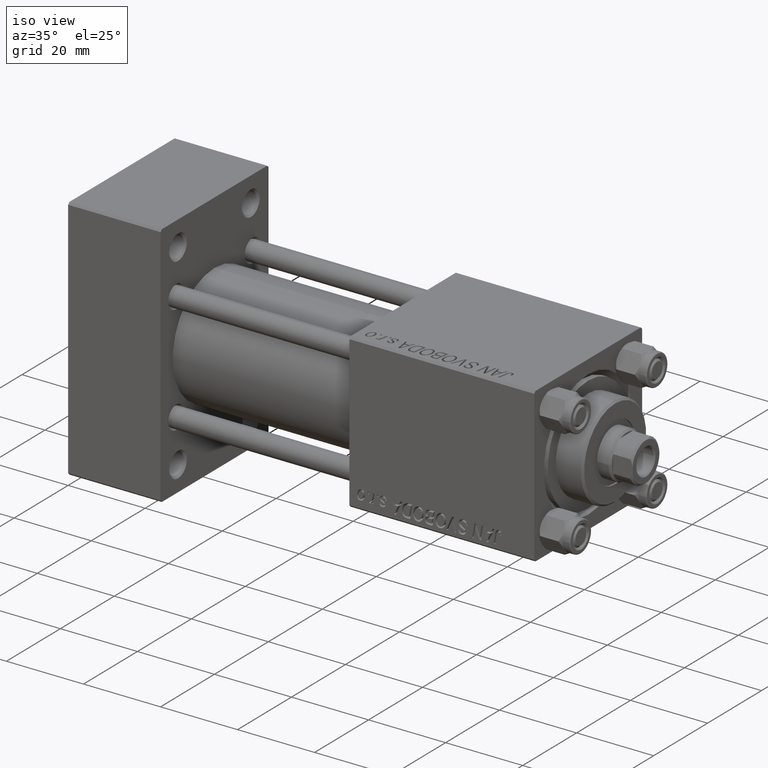
[diagram: clean part render]
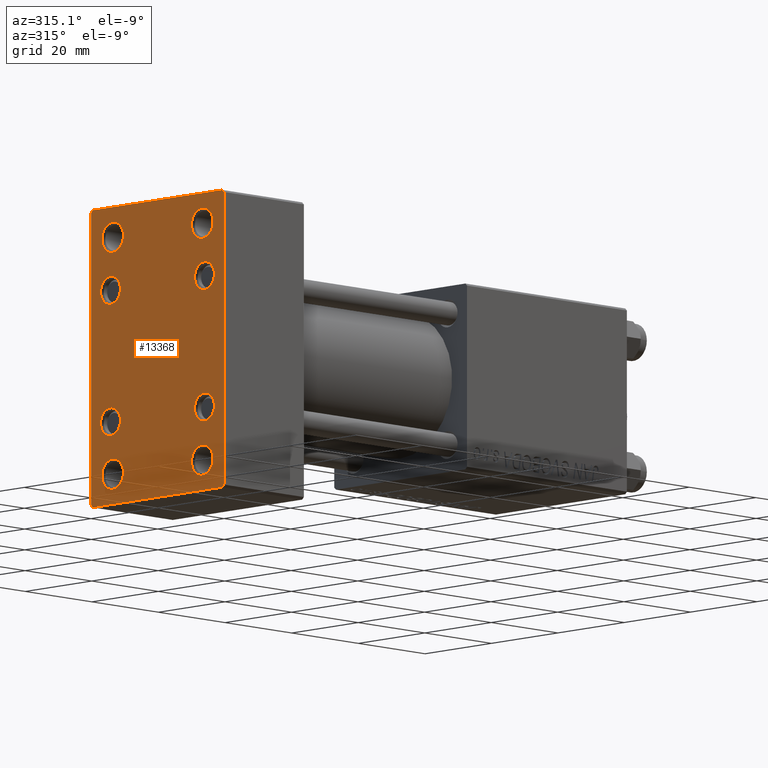
[diagram: tour spotlight — one face highlighted and labeled with its STEP entity id]
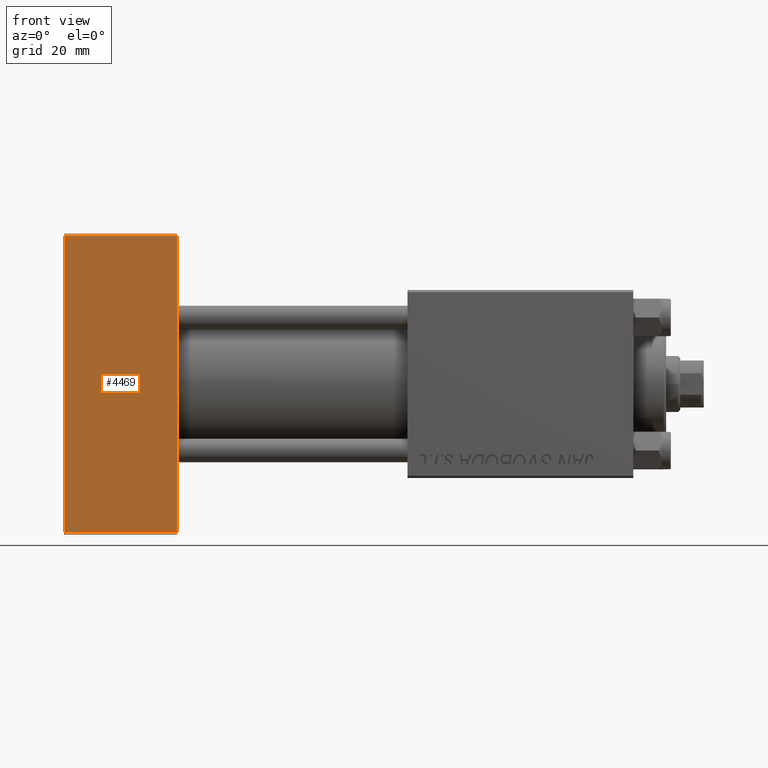
[diagram: tour spotlight — one face highlighted and labeled with its STEP entity id]
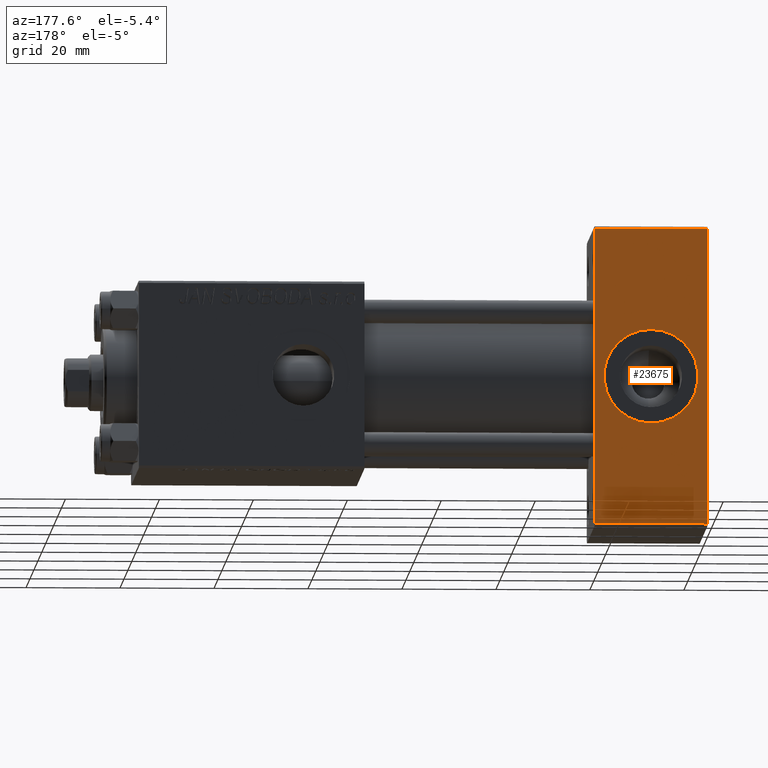
[diagram: tour spotlight — one face highlighted and labeled with its STEP entity id]
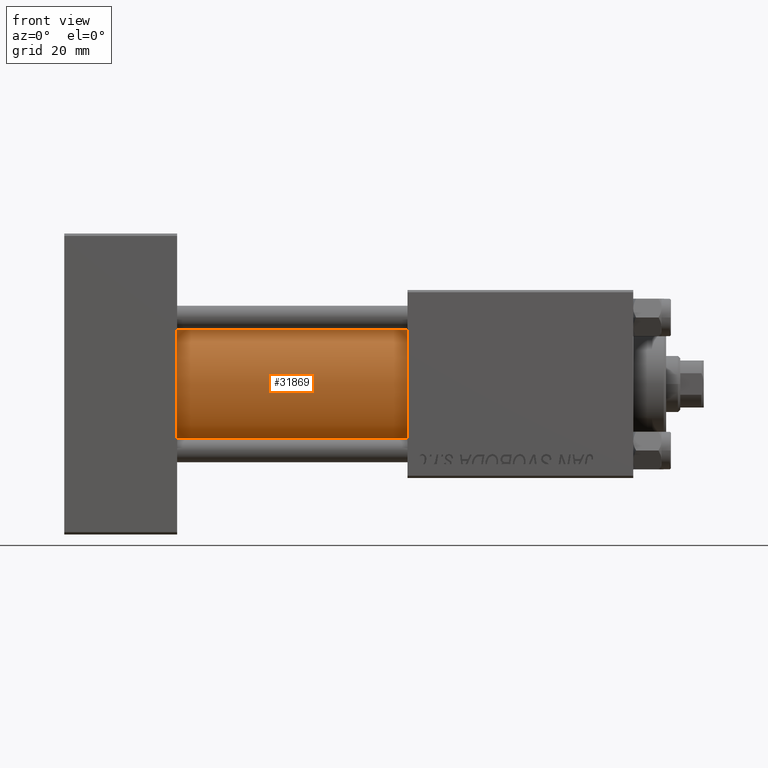
[diagram: tour spotlight — one face highlighted and labeled with its STEP entity id]
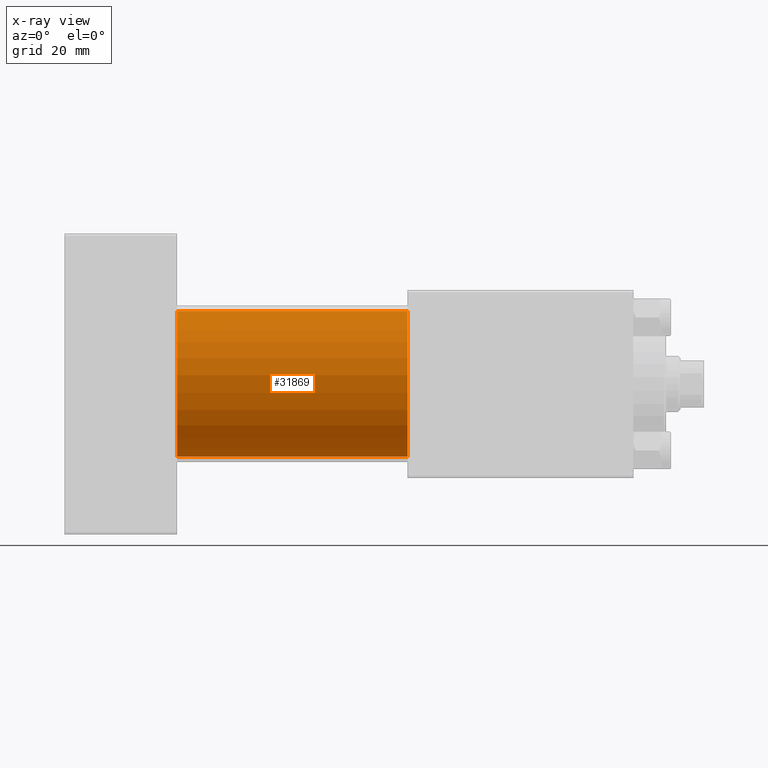
[diagram: x-ray of the same camera — body ghosted, this tour face saturated]
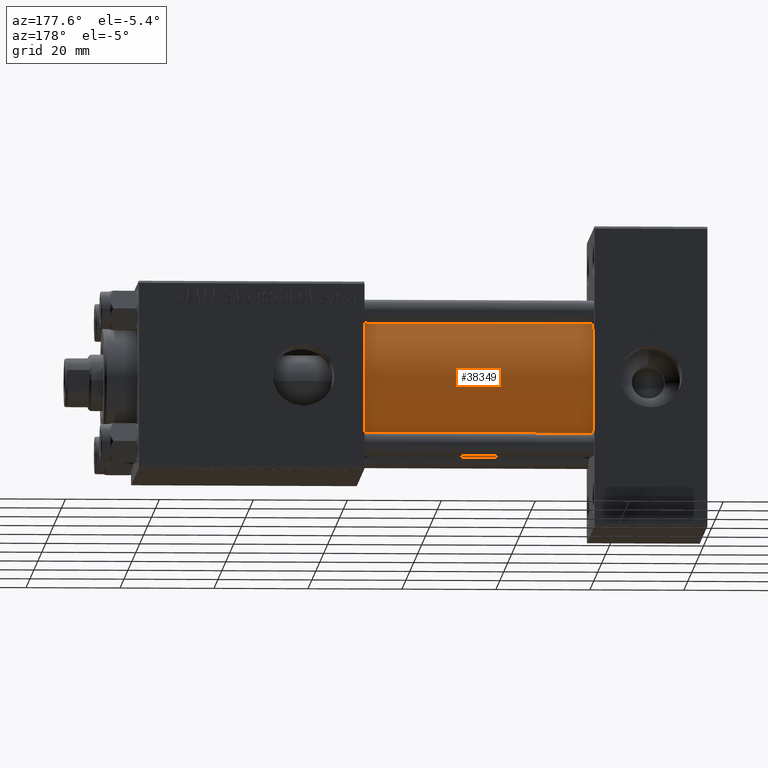
[diagram: tour spotlight — one face highlighted and labeled with its STEP entity id]
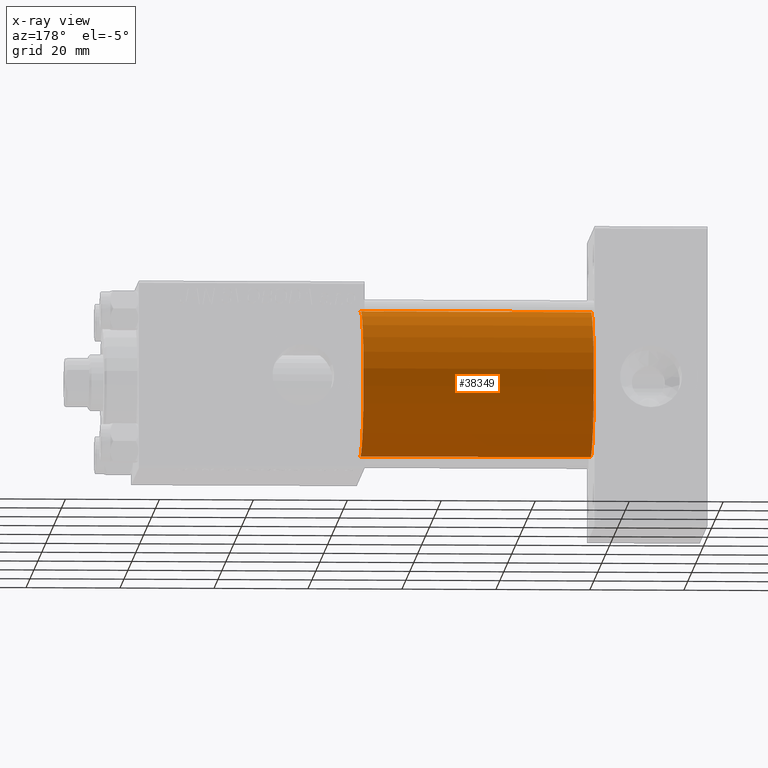
[diagram: x-ray of the same camera — body ghosted, this tour face saturated]
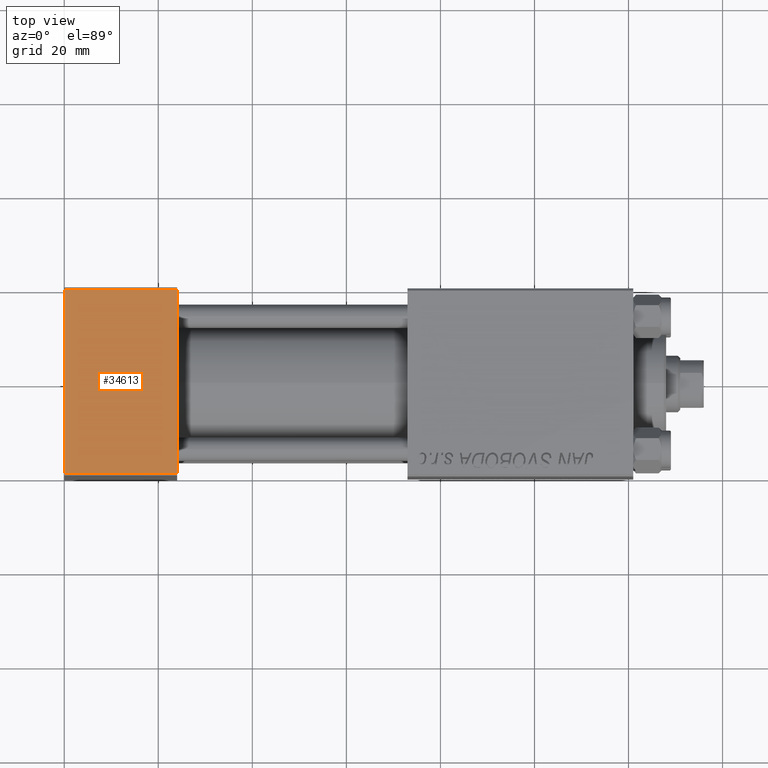
[diagram: tour spotlight — one face highlighted and labeled with its STEP entity id]
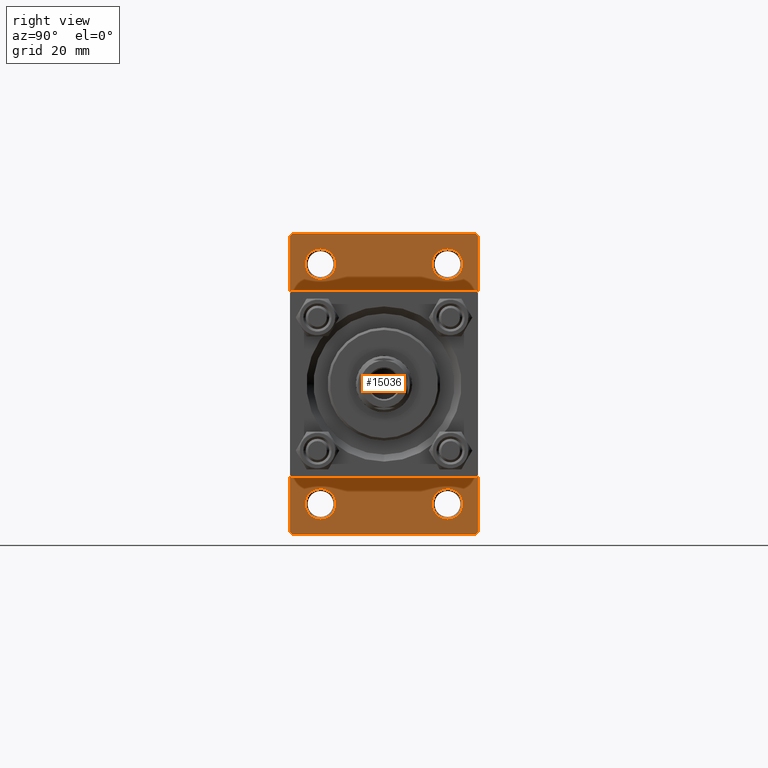
[diagram: tour spotlight — one face highlighted and labeled with its STEP entity id]
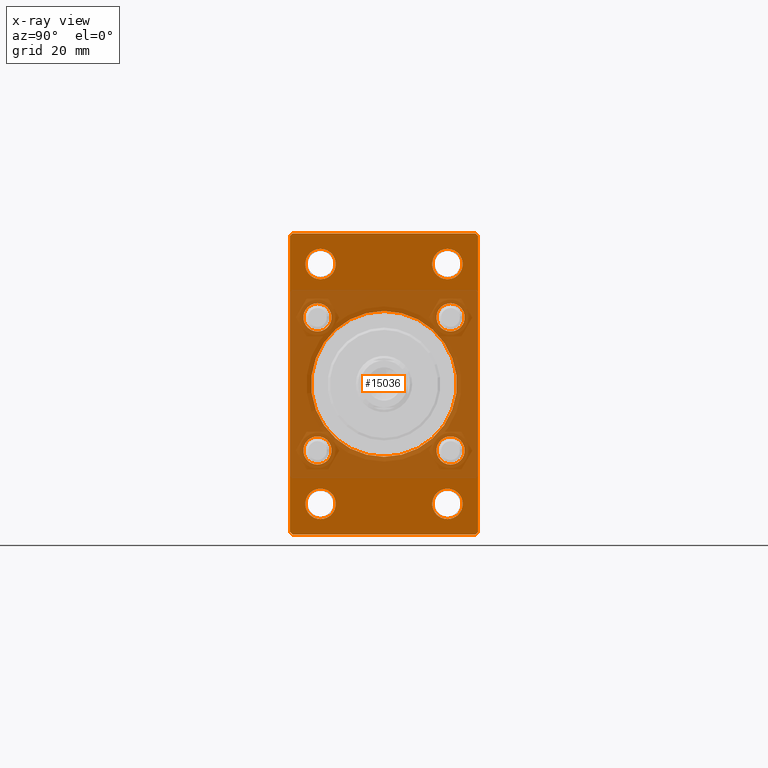
[diagram: x-ray of the same camera — body ghosted, this tour face saturated]
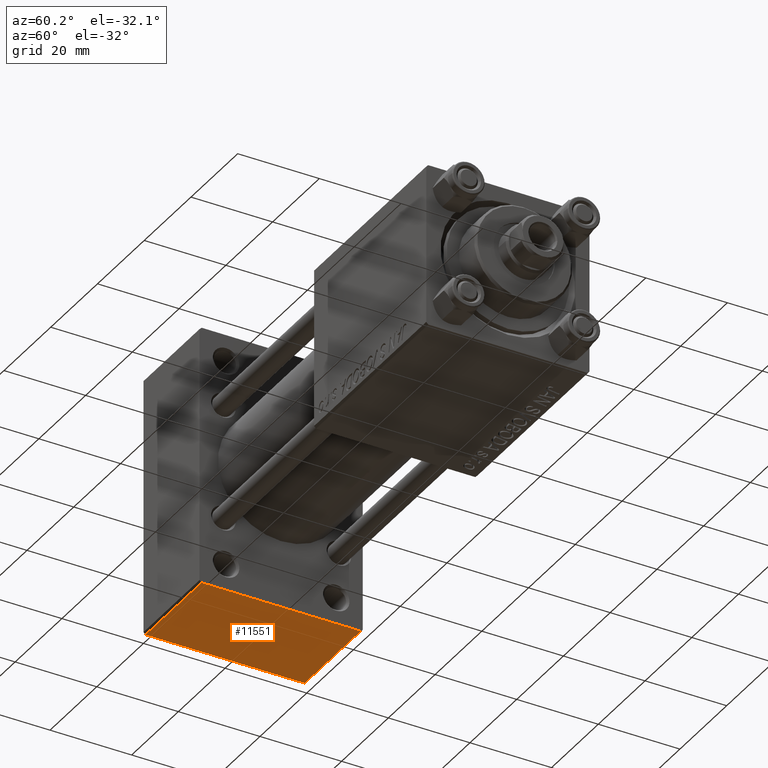
[diagram: tour spotlight — one face highlighted and labeled with its STEP entity id]
A machine part: a face-by-face anatomy tour. The part has 1136 B-rep faces; the first image is the clean iso view, then the 8 largest visible faces are spotlighted one at a time (largest first), each with its STEP entity span.

Face 1 — auxiliary view, entity #13368. In plain terms, the highlighted planar face has unit normal (-1, 0, 0).
Definition (entity closure, byte-faithful):
#413 = EDGE_CURVE ( 'NONE', #36184, #1352, #6486, .T. ) ;
#457 = DIRECTION ( 'NONE',  ( 1.000000000000000000, 0.000000000000000000, 0.000000000000000000 ) ) ;
#527 = EDGE_CURVE ( 'NONE', #11367, #2411, #30680, .T. ) ;
#608 = AXIS2_PLACEMENT_3D ( 'NONE', #25681, #41057, #33746 ) ;
#702 = VECTOR ( 'NONE', #32369, 1000.000000000000000 ) ;
#709 = DIRECTION ( 'NONE',  ( -0.000000000000000000, 0.7071067811865426878, 0.7071067811865524577 ) ) ;
#768 = VECTOR ( 'NONE', #37333, 1000.000000000000000 ) ;
#890 = CIRCLE ( 'NONE', #23501, 3.000000000000000888 ) ;
#998 = CARTESIAN_POINT ( 'NONE',  ( 0.000000000000000000, 19.99999999999999645, 32.00000000000000000 ) ) ;
#1010 = CARTESIAN_POINT ( 'NONE',  ( 0.000000000000000000, -13.49999999999999822, 28.74999999999998579 ) ) ;
#1352 = VERTEX_POINT ( 'NONE', #48486 ) ;
#2092 = EDGE_LOOP ( 'NONE', ( #41809, #47966 ) ) ;
#2227 = EDGE_CURVE ( 'NONE', #37892, #33816, #23405, .T. ) ;
#2405 = ORIENTED_EDGE ( 'NONE', *, *, #29440, .T. ) ;
#2411 = VERTEX_POINT ( 'NONE', #44579 ) ;
#2465 = EDGE_CURVE ( 'NONE', #39661, #44119, #6475, .T. ) ;
#3481 = CARTESIAN_POINT ( 'NONE',  ( 0.000000000000000000, -13.49999999999999822, 25.50000000000000000 ) ) ;
#3492 = DIRECTION ( 'NONE',  ( 0.000000000000000000, 0.000000000000000000, 1.000000000000000000 ) ) ;
#3499 = CARTESIAN_POINT ( 'NONE',  ( 0.000000000000000000, -20.00000000000000355, 32.00000000000000000 ) ) ;
#3594 = AXIS2_PLACEMENT_3D ( 'NONE', #7952, #46044, #23354 ) ;
#3840 = DIRECTION ( 'NONE',  ( 0.000000000000000000, -1.000000000000000000, 0.000000000000000000 ) ) ;
#3966 = ORIENTED_EDGE ( 'NONE', *, *, #34204, .T. ) ;
#4188 = DIRECTION ( 'NONE',  ( 0.000000000000000000, 0.000000000000000000, 1.000000000000000000 ) ) ;
#4402 = EDGE_CURVE ( 'NONE', #22720, #36615, #12164, .T. ) ;
#4416 = AXIS2_PLACEMENT_3D ( 'NONE', #25842, #14498, #10459 ) ;
#4504 = CARTESIAN_POINT ( 'NONE',  ( -0.000000000000000000, -25.75000000000014211, 25.74999999999978684 ) ) ;
#4714 = VERTEX_POINT ( 'NONE', #37692 ) ;
#5030 = DIRECTION ( 'NONE',  ( 0.000000000000000000, 0.000000000000000000, 1.000000000000000000 ) ) ;
#5476 = VECTOR ( 'NONE', #47188, 1000.000000000000000 ) ;
#5531 = CARTESIAN_POINT ( 'NONE',  ( 0.000000000000000000, -14.14999999999999503, 17.15000000000000924 ) ) ;
#5720 = EDGE_CURVE ( 'NONE', #15144, #18013, #890, .T. ) ;
#5785 = CARTESIAN_POINT ( 'NONE',  ( 0.000000000000000000, 14.14999999999999858, 17.15000000000000568 ) ) ;
#5786 = CIRCLE ( 'NONE', #44463, 3.000000000000004441 ) ;
#5923 = CIRCLE ( 'NONE', #27657, 3.249999999999988898 ) ;
#6211 = LINE ( 'NONE', #38410, #40323 ) ;
#6246 = ORIENTED_EDGE ( 'NONE', *, *, #413, .T. ) ;
#6475 = LINE ( 'NONE', #37243, #29006 ) ;
#6486 = CIRCLE ( 'NONE', #16199, 3.249999999999988898 ) ;
#6504 = VERTEX_POINT ( 'NONE', #31158 ) ;
#7092 = AXIS2_PLACEMENT_3D ( 'NONE', #25847, #14761, #18033 ) ;
#7124 = EDGE_LOOP ( 'NONE', ( #45964, #19032 ) ) ;
#7305 = DIRECTION ( 'NONE',  ( 1.000000000000000000, 0.000000000000000000, 0.000000000000000000 ) ) ;
#7555 = LINE ( 'NONE', #4504, #13083 ) ;
#7617 = CARTESIAN_POINT ( 'NONE',  ( 0.000000000000000000, -14.14999999999999503, -11.15000000000000036 ) ) ;
#7753 = DIRECTION ( 'NONE',  ( 0.000000000000000000, 0.000000000000000000, 1.000000000000000000 ) ) ;
#7924 = CIRCLE ( 'NONE', #40940, 3.000000000000000888 ) ;
#7934 = CARTESIAN_POINT ( 'NONE',  ( 0.000000000000000000, 14.14999999999999858, -17.15000000000000568 ) ) ;
#7952 = CARTESIAN_POINT ( 'NONE',  ( 0.000000000000000000, 0.000000000000000000, 0.000000000000000000 ) ) ;
#8317 = AXIS2_PLACEMENT_3D ( 'NONE', #13038, #32445, #39258 ) ;
#8453 = FACE_BOUND ( 'NONE', #2092, .T. ) ;
#9009 = VERTEX_POINT ( 'NONE', #26763 ) ;
#10003 = EDGE_CURVE ( 'NONE', #4714, #31737, #10763, .T. ) ;
#10042 = DIRECTION ( 'NONE',  ( 0.000000000000000000, 0.000000000000000000, 1.000000000000000000 ) ) ;
#10459 = DIRECTION ( 'NONE',  ( 0.000000000000000000, 0.000000000000000000, 1.000000000000000000 ) ) ;
#10763 = CIRCLE ( 'NONE', #48594, 3.249999999999988898 ) ;
#10851 = LINE ( 'NONE', #25980, #19596 ) ;
#10880 = ORIENTED_EDGE ( 'NONE', *, *, #49840, .T. ) ;
#11367 = VERTEX_POINT ( 'NONE', #5531 ) ;
#11509 = FACE_BOUND ( 'NONE', #7124, .T. ) ;
#11598 = DIRECTION ( 'NONE',  ( 1.000000000000000000, 0.000000000000000000, 0.000000000000000000 ) ) ;
#11612 = LINE ( 'NONE', #3499, #34406 ) ;
#12136 = DIRECTION ( 'NONE',  ( 0.000000000000000000, 0.000000000000000000, 1.000000000000000000 ) ) ;
#12164 = CIRCLE ( 'NONE', #16194, 3.000000000000004441 ) ;
#13038 = CARTESIAN_POINT ( 'NONE',  ( 0.000000000000000000, 14.14999999999999858, -14.15000000000000036 ) ) ;
#13083 = VECTOR ( 'NONE', #709, 1000.000000000000000 ) ;
#13193 = CIRCLE ( 'NONE', #47810, 3.249999999999988898 ) ;
#13368 = ADVANCED_FACE ( 'NONE', ( #8453, #19068, #46297, #38718, #27134, #11509, #31405, #34449, #19564 ), #34194, .T. ) ;
#14267 = ORIENTED_EDGE ( 'NONE', *, *, #25400, .T. ) ;
#14498 = DIRECTION ( 'NONE',  ( 1.000000000000000000, 0.000000000000000000, 0.000000000000000000 ) ) ;
#14652 = DIRECTION ( 'NONE',  ( 0.000000000000000000, 0.000000000000000000, 1.000000000000000000 ) ) ;
#14761 = DIRECTION ( 'NONE',  ( 1.000000000000000000, 0.000000000000000000, 0.000000000000000000 ) ) ;
#15135 = CARTESIAN_POINT ( 'NONE',  ( 0.000000000000000000, 14.14999999999999858, 14.15000000000000036 ) ) ;
#15144 = VERTEX_POINT ( 'NONE', #31864 ) ;
#15331 = CARTESIAN_POINT ( 'NONE',  ( 0.000000000000000000, 14.14999999999999858, -14.15000000000000036 ) ) ;
#15637 = CARTESIAN_POINT ( 'NONE',  ( 0.000000000000000000, -20.00000000000000355, -31.49999999999997158 ) ) ;
#16075 = DIRECTION ( 'NONE',  ( 1.000000000000000000, 0.000000000000000000, 0.000000000000000000 ) ) ;
#16170 = LINE ( 'NONE', #998, #5476 ) ;
#16194 = AXIS2_PLACEMENT_3D ( 'NONE', #21457, #25244, #40618 ) ;
#16199 = AXIS2_PLACEMENT_3D ( 'NONE', #30621, #47674, #12136 ) ;
#16838 = CARTESIAN_POINT ( 'NONE',  ( 0.000000000000000000, 13.50000000000000178, -22.25000000000001066 ) ) ;
#17236 = CARTESIAN_POINT ( 'NONE',  ( -0.000000000000000000, 25.74999999999986144, -25.75000000000021672 ) ) ;
#17361 = CARTESIAN_POINT ( 'NONE',  ( 0.000000000000000000, 13.50000000000000178, 25.50000000000000000 ) ) ;
#17384 = VERTEX_POINT ( 'NONE', #38785 ) ;
#17488 = LINE ( 'NONE', #17236, #702 ) ;
#18013 = VERTEX_POINT ( 'NONE', #5785 ) ;
#18033 = DIRECTION ( 'NONE',  ( 0.000000000000000000, 0.000000000000000000, 1.000000000000000000 ) ) ;
#18654 = DIRECTION ( 'NONE',  ( 0.000000000000000000, 0.000000000000000000, -1.000000000000000000 ) ) ;
#19032 = ORIENTED_EDGE ( 'NONE', *, *, #4402, .T. ) ;
#19068 = FACE_BOUND ( 'NONE', #49402, .T. ) ;
#19179 = CARTESIAN_POINT ( 'NONE',  ( 0.000000000000000000, 19.49999999999999645, -31.99999999999999289 ) ) ;
#19236 = EDGE_CURVE ( 'NONE', #6504, #44119, #11612, .T. ) ;
#19564 = FACE_OUTER_BOUND ( 'NONE', #24334, .T. ) ;
#19596 = VECTOR ( 'NONE', #45641, 1000.000000000000114 ) ;
#20190 = EDGE_CURVE ( 'NONE', #2411, #11367, #32852, .T. ) ;
#20378 = CIRCLE ( 'NONE', #39706, 3.000000000000004441 ) ;
#20483 = EDGE_CURVE ( 'NONE', #31737, #4714, #44112, .T. ) ;
#20536 = ORIENTED_EDGE ( 'NONE', *, *, #20190, .T. ) ;
#21457 = CARTESIAN_POINT ( 'NONE',  ( 0.000000000000000000, -14.14999999999999503, -14.15000000000000391 ) ) ;
#21967 = CARTESIAN_POINT ( 'NONE',  ( 0.000000000000000000, 19.99999999999999645, 32.00000000000000000 ) ) ;
#22629 = AXIS2_PLACEMENT_3D ( 'NONE', #22932, #42088, #38299 ) ;
#22720 = VERTEX_POINT ( 'NONE', #46094 ) ;
#22932 = CARTESIAN_POINT ( 'NONE',  ( 0.000000000000000000, -14.14999999999999503, 14.15000000000000391 ) ) ;
#23193 = DIRECTION ( 'NONE',  ( 0.000000000000000000, 0.000000000000000000, 1.000000000000000000 ) ) ;
#23215 = CARTESIAN_POINT ( 'NONE',  ( 0.000000000000000000, 14.14999999999999858, 14.15000000000000036 ) ) ;
#23354 = DIRECTION ( 'NONE',  ( -0.000000000000000000, 0.000000000000000000, 1.000000000000000000 ) ) ;
#23401 = VERTEX_POINT ( 'NONE', #19179 ) ;
#23405 = CIRCLE ( 'NONE', #37045, 3.249999999999988898 ) ;
#23501 = AXIS2_PLACEMENT_3D ( 'NONE', #23215, #7305, #38577 ) ;
#23948 = ORIENTED_EDGE ( 'NONE', *, *, #527, .T. ) ;
#24334 = EDGE_LOOP ( 'NONE', ( #2405, #35942, #42574, #42628, #42880, #3966, #40277, #47548 ) ) ;
#24415 = EDGE_CURVE ( 'NONE', #48369, #17384, #16170, .T. ) ;
#24601 = EDGE_LOOP ( 'NONE', ( #23948, #20536 ) ) ;
#24709 = EDGE_CURVE ( 'NONE', #33816, #37892, #28027, .T. ) ;
#25204 = ORIENTED_EDGE ( 'NONE', *, *, #5720, .T. ) ;
#25244 = DIRECTION ( 'NONE',  ( 1.000000000000000000, 0.000000000000000000, 0.000000000000000000 ) ) ;
#25400 = EDGE_CURVE ( 'NONE', #18013, #15144, #7924, .T. ) ;
#25681 = CARTESIAN_POINT ( 'NONE',  ( 0.000000000000000000, 13.50000000000000178, -25.50000000000000000 ) ) ;
#25842 = CARTESIAN_POINT ( 'NONE',  ( 0.000000000000000000, -13.49999999999999822, -25.50000000000000000 ) ) ;
#25847 = CARTESIAN_POINT ( 'NONE',  ( 0.000000000000000000, -13.49999999999999822, 25.50000000000000000 ) ) ;
#25980 = CARTESIAN_POINT ( 'NONE',  ( -0.000000000000000000, 25.75000000000000000, 25.75000000000000000 ) ) ;
#26745 = CARTESIAN_POINT ( 'NONE',  ( 0.000000000000000000, 19.99999999999999645, 31.50000000000000000 ) ) ;
#26763 = CARTESIAN_POINT ( 'NONE',  ( 0.000000000000000000, 19.99999999999999645, -31.50000000000000000 ) ) ;
#26951 = VERTEX_POINT ( 'NONE', #7934 ) ;
#27106 = EDGE_CURVE ( 'NONE', #9009, #23401, #17488, .T. ) ;
#27134 = FACE_BOUND ( 'NONE', #24601, .T. ) ;
#27657 = AXIS2_PLACEMENT_3D ( 'NONE', #44657, #40621, #45645 ) ;
#27776 = CARTESIAN_POINT ( 'NONE',  ( 0.000000000000000000, 13.50000000000000178, 28.74999999999998579 ) ) ;
#28027 = CIRCLE ( 'NONE', #7092, 3.249999999999988898 ) ;
#28199 = ORIENTED_EDGE ( 'NONE', *, *, #24709, .T. ) ;
#28251 = CARTESIAN_POINT ( 'NONE',  ( 0.000000000000000000, 13.50000000000000178, -25.50000000000000000 ) ) ;
#28403 = CARTESIAN_POINT ( 'NONE',  ( 0.000000000000000000, -13.49999999999999822, -28.74999999999998579 ) ) ;
#29006 = VECTOR ( 'NONE', #48117, 1000.000000000000000 ) ;
#29143 = CARTESIAN_POINT ( 'NONE',  ( 0.000000000000000000, 14.14999999999999858, -11.14999999999999680 ) ) ;
#29440 = EDGE_CURVE ( 'NONE', #37954, #9009, #40637, .T. ) ;
#30073 = CIRCLE ( 'NONE', #8317, 3.000000000000004441 ) ;
#30621 = CARTESIAN_POINT ( 'NONE',  ( 0.000000000000000000, -13.49999999999999822, -25.50000000000000000 ) ) ;
#30680 = CIRCLE ( 'NONE', #22629, 3.000000000000000888 ) ;
#30817 = CARTESIAN_POINT ( 'NONE',  ( 0.000000000000000000, 19.49999999999999645, 32.00000000000000000 ) ) ;
#30952 = DIRECTION ( 'NONE',  ( 1.000000000000000000, 0.000000000000000000, 0.000000000000000000 ) ) ;
#30978 = EDGE_CURVE ( 'NONE', #23401, #39661, #6211, .T. ) ;
#31158 = CARTESIAN_POINT ( 'NONE',  ( 0.000000000000000000, -20.00000000000000355, 31.50000000000000711 ) ) ;
#31405 = FACE_BOUND ( 'NONE', #44535, .T. ) ;
#31412 = ORIENTED_EDGE ( 'NONE', *, *, #41876, .T. ) ;
#31737 = VERTEX_POINT ( 'NONE', #16838 ) ;
#31864 = CARTESIAN_POINT ( 'NONE',  ( 0.000000000000000000, 14.14999999999999858, 11.14999999999999858 ) ) ;
#32369 = DIRECTION ( 'NONE',  ( -0.000000000000000000, -0.7071067811865524577, -0.7071067811865426878 ) ) ;
#32445 = DIRECTION ( 'NONE',  ( 1.000000000000000000, 0.000000000000000000, 0.000000000000000000 ) ) ;
#32852 = CIRCLE ( 'NONE', #34443, 3.000000000000000888 ) ;
#33313 = CARTESIAN_POINT ( 'NONE',  ( 0.000000000000000000, -13.49999999999999822, 22.25000000000001066 ) ) ;
#33324 = VERTEX_POINT ( 'NONE', #29143 ) ;
#33746 = DIRECTION ( 'NONE',  ( 0.000000000000000000, 0.000000000000000000, 1.000000000000000000 ) ) ;
#33816 = VERTEX_POINT ( 'NONE', #1010 ) ;
#34194 = PLANE ( 'NONE',  #3594 ) ;
#34204 = EDGE_CURVE ( 'NONE', #6504, #17384, #7555, .T. ) ;
#34406 = VECTOR ( 'NONE', #18654, 1000.000000000000000 ) ;
#34443 = AXIS2_PLACEMENT_3D ( 'NONE', #48943, #49190, #14652 ) ;
#34449 = FACE_BOUND ( 'NONE', #49703, .T. ) ;
#35026 = CIRCLE ( 'NONE', #4416, 3.249999999999988898 ) ;
#35612 = EDGE_LOOP ( 'NONE', ( #10880, #6246 ) ) ;
#35942 = ORIENTED_EDGE ( 'NONE', *, *, #27106, .T. ) ;
#36184 = VERTEX_POINT ( 'NONE', #28403 ) ;
#36214 = VERTEX_POINT ( 'NONE', #43285 ) ;
#36615 = VERTEX_POINT ( 'NONE', #7617 ) ;
#37045 = AXIS2_PLACEMENT_3D ( 'NONE', #3481, #11598, #23193 ) ;
#37243 = CARTESIAN_POINT ( 'NONE',  ( 0.000000000000000000, -25.75000000000026645, -25.74999999999955591 ) ) ;
#37333 = DIRECTION ( 'NONE',  ( 0.000000000000000000, 0.000000000000000000, -1.000000000000000000 ) ) ;
#37692 = CARTESIAN_POINT ( 'NONE',  ( 0.000000000000000000, 13.50000000000000178, -28.74999999999998579 ) ) ;
#37892 = VERTEX_POINT ( 'NONE', #33313 ) ;
#37954 = VERTEX_POINT ( 'NONE', #26745 ) ;
#38299 = DIRECTION ( 'NONE',  ( 0.000000000000000000, 0.000000000000000000, 1.000000000000000000 ) ) ;
#38305 = EDGE_CURVE ( 'NONE', #26951, #33324, #5786, .T. ) ;
#38410 = CARTESIAN_POINT ( 'NONE',  ( 0.000000000000000000, 19.99999999999999645, -31.99999999999999289 ) ) ;
#38577 = DIRECTION ( 'NONE',  ( 0.000000000000000000, 0.000000000000000000, 1.000000000000000000 ) ) ;
#38718 = FACE_BOUND ( 'NONE', #43297, .T. ) ;
#38785 = CARTESIAN_POINT ( 'NONE',  ( 0.000000000000000000, -19.50000000000001776, 32.00000000000000000 ) ) ;
#39258 = DIRECTION ( 'NONE',  ( 0.000000000000000000, 0.000000000000000000, 1.000000000000000000 ) ) ;
#39661 = VERTEX_POINT ( 'NONE', #41923 ) ;
#39706 = AXIS2_PLACEMENT_3D ( 'NONE', #42802, #16075, #7753 ) ;
#40277 = ORIENTED_EDGE ( 'NONE', *, *, #24415, .F. ) ;
#40323 = VECTOR ( 'NONE', #3840, 1000.000000000000000 ) ;
#40618 = DIRECTION ( 'NONE',  ( 0.000000000000000000, 0.000000000000000000, 1.000000000000000000 ) ) ;
#40621 = DIRECTION ( 'NONE',  ( 1.000000000000000000, 0.000000000000000000, 0.000000000000000000 ) ) ;
#40637 = LINE ( 'NONE', #21967, #768 ) ;
#40881 = ORIENTED_EDGE ( 'NONE', *, *, #38305, .T. ) ;
#40940 = AXIS2_PLACEMENT_3D ( 'NONE', #15135, #457, #3492 ) ;
#41057 = DIRECTION ( 'NONE',  ( 1.000000000000000000, 0.000000000000000000, 0.000000000000000000 ) ) ;
#41178 = ORIENTED_EDGE ( 'NONE', *, *, #2227, .T. ) ;
#41269 = EDGE_CURVE ( 'NONE', #48369, #37954, #10851, .T. ) ;
#41772 = EDGE_CURVE ( 'NONE', #36615, #22720, #20378, .T. ) ;
#41809 = ORIENTED_EDGE ( 'NONE', *, *, #45405, .T. ) ;
#41876 = EDGE_CURVE ( 'NONE', #33324, #26951, #30073, .T. ) ;
#41923 = CARTESIAN_POINT ( 'NONE',  ( 0.000000000000000000, -19.49999999999999645, -31.99999999999999289 ) ) ;
#42088 = DIRECTION ( 'NONE',  ( 1.000000000000000000, 0.000000000000000000, 0.000000000000000000 ) ) ;
#42574 = ORIENTED_EDGE ( 'NONE', *, *, #30978, .T. ) ;
#42628 = ORIENTED_EDGE ( 'NONE', *, *, #2465, .T. ) ;
#42802 = CARTESIAN_POINT ( 'NONE',  ( 0.000000000000000000, -14.14999999999999503, -14.15000000000000391 ) ) ;
#42880 = ORIENTED_EDGE ( 'NONE', *, *, #19236, .F. ) ;
#43285 = CARTESIAN_POINT ( 'NONE',  ( 0.000000000000000000, 13.50000000000000178, 22.25000000000001066 ) ) ;
#43297 = EDGE_LOOP ( 'NONE', ( #47588, #45491 ) ) ;
#43983 = VERTEX_POINT ( 'NONE', #27776 ) ;
#44112 = CIRCLE ( 'NONE', #608, 3.249999999999988898 ) ;
#44119 = VERTEX_POINT ( 'NONE', #15637 ) ;
#44463 = AXIS2_PLACEMENT_3D ( 'NONE', #15331, #30952, #4188 ) ;
#44535 = EDGE_LOOP ( 'NONE', ( #31412, #40881 ) ) ;
#44579 = CARTESIAN_POINT ( 'NONE',  ( 0.000000000000000000, -14.14999999999999503, 11.15000000000000213 ) ) ;
#44590 = DIRECTION ( 'NONE',  ( 1.000000000000000000, 0.000000000000000000, 0.000000000000000000 ) ) ;
#44657 = CARTESIAN_POINT ( 'NONE',  ( 0.000000000000000000, 13.50000000000000178, 25.50000000000000000 ) ) ;
#45405 = EDGE_CURVE ( 'NONE', #43983, #36214, #13193, .T. ) ;
#45491 = ORIENTED_EDGE ( 'NONE', *, *, #10003, .T. ) ;
#45641 = DIRECTION ( 'NONE',  ( 0.000000000000000000, 0.7071067811865474617, -0.7071067811865474617 ) ) ;
#45645 = DIRECTION ( 'NONE',  ( 0.000000000000000000, 0.000000000000000000, 1.000000000000000000 ) ) ;
#45816 = EDGE_CURVE ( 'NONE', #36214, #43983, #5923, .T. ) ;
#45964 = ORIENTED_EDGE ( 'NONE', *, *, #41772, .T. ) ;
#46044 = DIRECTION ( 'NONE',  ( -1.000000000000000000, 0.000000000000000000, -0.000000000000000000 ) ) ;
#46094 = CARTESIAN_POINT ( 'NONE',  ( 0.000000000000000000, -14.14999999999999503, -17.15000000000000924 ) ) ;
#46297 = FACE_BOUND ( 'NONE', #35612, .T. ) ;
#46926 = DIRECTION ( 'NONE',  ( 1.000000000000000000, 0.000000000000000000, 0.000000000000000000 ) ) ;
#47188 = DIRECTION ( 'NONE',  ( 0.000000000000000000, -1.000000000000000000, 0.000000000000000000 ) ) ;
#47548 = ORIENTED_EDGE ( 'NONE', *, *, #41269, .T. ) ;
#47588 = ORIENTED_EDGE ( 'NONE', *, *, #20483, .T. ) ;
#47674 = DIRECTION ( 'NONE',  ( 1.000000000000000000, 0.000000000000000000, 0.000000000000000000 ) ) ;
#47810 = AXIS2_PLACEMENT_3D ( 'NONE', #17361, #44590, #10042 ) ;
#47966 = ORIENTED_EDGE ( 'NONE', *, *, #45816, .T. ) ;
#48117 = DIRECTION ( 'NONE',  ( 0.000000000000000000, -0.7071067811865378028, 0.7071067811865573427 ) ) ;
#48369 = VERTEX_POINT ( 'NONE', #30817 ) ;
#48486 = CARTESIAN_POINT ( 'NONE',  ( 0.000000000000000000, -13.49999999999999822, -22.25000000000001066 ) ) ;
#48594 = AXIS2_PLACEMENT_3D ( 'NONE', #28251, #46926, #5030 ) ;
#48943 = CARTESIAN_POINT ( 'NONE',  ( 0.000000000000000000, -14.14999999999999503, 14.15000000000000391 ) ) ;
#49190 = DIRECTION ( 'NONE',  ( 1.000000000000000000, 0.000000000000000000, 0.000000000000000000 ) ) ;
#49402 = EDGE_LOOP ( 'NONE', ( #28199, #41178 ) ) ;
#49703 = EDGE_LOOP ( 'NONE', ( #14267, #25204 ) ) ;
#49840 = EDGE_CURVE ( 'NONE', #1352, #36184, #35026, .T. ) ;

Face 2 — front view, entity #4469. In plain terms, the highlighted planar face has unit normal (0, 1, 0).
Definition (entity closure, byte-faithful):
#735 = EDGE_LOOP ( 'NONE', ( #6870, #12316, #35301, #23279 ) ) ;
#2108 = DIRECTION ( 'NONE',  ( 1.000000000000000000, 0.000000000000000000, 0.000000000000000000 ) ) ;
#3499 = CARTESIAN_POINT ( 'NONE',  ( 0.000000000000000000, -20.00000000000000355, 32.00000000000000000 ) ) ;
#4469 = ADVANCED_FACE ( 'NONE', ( #45395 ), #44902, .F. ) ;
#4927 = DIRECTION ( 'NONE',  ( -1.000000000000000000, 0.000000000000000000, 0.000000000000000000 ) ) ;
#6504 = VERTEX_POINT ( 'NONE', #31158 ) ;
#6870 = ORIENTED_EDGE ( 'NONE', *, *, #19236, .T. ) ;
#9198 = EDGE_CURVE ( 'NONE', #44119, #41016, #43756, .T. ) ;
#11612 = LINE ( 'NONE', #3499, #34406 ) ;
#12316 = ORIENTED_EDGE ( 'NONE', *, *, #9198, .T. ) ;
#15637 = CARTESIAN_POINT ( 'NONE',  ( 0.000000000000000000, -20.00000000000000355, -31.49999999999997158 ) ) ;
#17953 = VECTOR ( 'NONE', #2108, 1000.000000000000000 ) ;
#18654 = DIRECTION ( 'NONE',  ( 0.000000000000000000, 0.000000000000000000, -1.000000000000000000 ) ) ;
#18980 = CARTESIAN_POINT ( 'NONE',  ( 24.00000000000000000, -20.00000000000000355, -31.49999999999997158 ) ) ;
#19236 = EDGE_CURVE ( 'NONE', #6504, #44119, #11612, .T. ) ;
#23279 = ORIENTED_EDGE ( 'NONE', *, *, #36241, .T. ) ;
#23786 = CARTESIAN_POINT ( 'NONE',  ( 24.00000000000000000, -20.00000000000000355, 32.00000000000000000 ) ) ;
#25082 = CARTESIAN_POINT ( 'NONE',  ( 24.00000000000000000, -20.00000000000000355, -31.49999999999997158 ) ) ;
#28291 = CARTESIAN_POINT ( 'NONE',  ( 24.00000000000000000, -20.00000000000000355, 31.50000000000000711 ) ) ;
#31158 = CARTESIAN_POINT ( 'NONE',  ( 0.000000000000000000, -20.00000000000000355, 31.50000000000000711 ) ) ;
#34406 = VECTOR ( 'NONE', #18654, 1000.000000000000000 ) ;
#34750 = VERTEX_POINT ( 'NONE', #28291 ) ;
#35121 = LINE ( 'NONE', #23786, #38175 ) ;
#35301 = ORIENTED_EDGE ( 'NONE', *, *, #40517, .F. ) ;
#36241 = EDGE_CURVE ( 'NONE', #34750, #6504, #39483, .T. ) ;
#37808 = DIRECTION ( 'NONE',  ( 0.000000000000000000, -0.000000000000000000, 1.000000000000000000 ) ) ;
#38175 = VECTOR ( 'NONE', #47466, 1000.000000000000000 ) ;
#39483 = LINE ( 'NONE', #43780, #47717 ) ;
#40334 = AXIS2_PLACEMENT_3D ( 'NONE', #49688, #41852, #37808 ) ;
#40517 = EDGE_CURVE ( 'NONE', #34750, #41016, #35121, .T. ) ;
#41016 = VERTEX_POINT ( 'NONE', #18980 ) ;
#41852 = DIRECTION ( 'NONE',  ( -0.000000000000000000, 1.000000000000000000, 0.000000000000000000 ) ) ;
#43756 = LINE ( 'NONE', #25082, #17953 ) ;
#43780 = CARTESIAN_POINT ( 'NONE',  ( 24.00000000000000000, -20.00000000000000355, 31.50000000000000711 ) ) ;
#44119 = VERTEX_POINT ( 'NONE', #15637 ) ;
#44902 = PLANE ( 'NONE',  #40334 ) ;
#45395 = FACE_OUTER_BOUND ( 'NONE', #735, .T. ) ;
#47466 = DIRECTION ( 'NONE',  ( 0.000000000000000000, 0.000000000000000000, -1.000000000000000000 ) ) ;
#47717 = VECTOR ( 'NONE', #4927, 1000.000000000000000 ) ;
#49688 = CARTESIAN_POINT ( 'NONE',  ( 24.00000000000000000, -20.00000000000000355, 32.00000000000000000 ) ) ;

Face 3 — auxiliary view, entity #23675. In plain terms, the highlighted planar face has unit normal (0, 1, 0).
Definition (entity closure, byte-faithful):
#768 = VECTOR ( 'NONE', #37333, 1000.000000000000000 ) ;
#2260 = DIRECTION ( 'NONE',  ( 0.000000000000000000, 1.000000000000000000, 0.000000000000000000 ) ) ;
#3494 = VECTOR ( 'NONE', #6158, 1000.000000000000000 ) ;
#4086 = ORIENTED_EDGE ( 'NONE', *, *, #47577, .T. ) ;
#5003 = ORIENTED_EDGE ( 'NONE', *, *, #29440, .F. ) ;
#5649 = VERTEX_POINT ( 'NONE', #41114 ) ;
#6158 = DIRECTION ( 'NONE',  ( 1.000000000000000000, 0.000000000000000000, 0.000000000000000000 ) ) ;
#7854 = AXIS2_PLACEMENT_3D ( 'NONE', #23721, #8060, #38832 ) ;
#7928 = AXIS2_PLACEMENT_3D ( 'NONE', #21459, #2260, #44656 ) ;
#7950 = ORIENTED_EDGE ( 'NONE', *, *, #27440, .F. ) ;
#8060 = DIRECTION ( 'NONE',  ( -0.000000000000000000, 1.000000000000000000, 0.000000000000000000 ) ) ;
#8092 = EDGE_LOOP ( 'NONE', ( #7950, #17877 ) ) ;
#9009 = VERTEX_POINT ( 'NONE', #26763 ) ;
#10847 = DIRECTION ( 'NONE',  ( 0.000000000000000000, 0.000000000000000000, 1.000000000000000000 ) ) ;
#11347 = CARTESIAN_POINT ( 'NONE',  ( 12.00000000000000000, 19.99999999999999645, 0.000000000000000000 ) ) ;
#13487 = ORIENTED_EDGE ( 'NONE', *, *, #48664, .T. ) ;
#15643 = VECTOR ( 'NONE', #34332, 1000.000000000000000 ) ;
#16012 = CIRCLE ( 'NONE', #7928, 10.00000000000000000 ) ;
#16223 = VERTEX_POINT ( 'NONE', #43433 ) ;
#16365 = DIRECTION ( 'NONE',  ( 0.000000000000000000, 0.000000000000000000, -1.000000000000000000 ) ) ;
#16395 = FACE_OUTER_BOUND ( 'NONE', #37697, .T. ) ;
#16461 = VECTOR ( 'NONE', #16365, 1000.000000000000000 ) ;
#17877 = ORIENTED_EDGE ( 'NONE', *, *, #22654, .F. ) ;
#18005 = VERTEX_POINT ( 'NONE', #48164 ) ;
#21459 = CARTESIAN_POINT ( 'NONE',  ( 12.00000000000000000, 19.99999999999999645, 0.000000000000000000 ) ) ;
#21967 = CARTESIAN_POINT ( 'NONE',  ( 0.000000000000000000, 19.99999999999999645, 32.00000000000000000 ) ) ;
#22193 = DIRECTION ( 'NONE',  ( 0.000000000000000000, 1.000000000000000000, 0.000000000000000000 ) ) ;
#22654 = EDGE_CURVE ( 'NONE', #18005, #25090, #16012, .T. ) ;
#22736 = LINE ( 'NONE', #44938, #15643 ) ;
#23675 = ADVANCED_FACE ( 'NONE', ( #42620, #16395 ), #43369, .T. ) ;
#23721 = CARTESIAN_POINT ( 'NONE',  ( 24.00000000000000000, 19.99999999999999645, 32.00000000000000000 ) ) ;
#24137 = CIRCLE ( 'NONE', #36971, 10.00000000000000000 ) ;
#25090 = VERTEX_POINT ( 'NONE', #27523 ) ;
#26745 = CARTESIAN_POINT ( 'NONE',  ( 0.000000000000000000, 19.99999999999999645, 31.50000000000000000 ) ) ;
#26763 = CARTESIAN_POINT ( 'NONE',  ( 0.000000000000000000, 19.99999999999999645, -31.50000000000000000 ) ) ;
#27440 = EDGE_CURVE ( 'NONE', #25090, #18005, #24137, .T. ) ;
#27500 = ORIENTED_EDGE ( 'NONE', *, *, #47132, .T. ) ;
#27523 = CARTESIAN_POINT ( 'NONE',  ( 12.00000000000000000, 19.99999999999999645, 10.00000000000000000 ) ) ;
#29440 = EDGE_CURVE ( 'NONE', #37954, #9009, #40637, .T. ) ;
#31744 = CARTESIAN_POINT ( 'NONE',  ( 24.00000000000000000, 19.99999999999999645, 32.00000000000000000 ) ) ;
#32406 = CARTESIAN_POINT ( 'NONE',  ( 24.00000000000000000, 19.99999999999999645, 31.50000000000000000 ) ) ;
#34332 = DIRECTION ( 'NONE',  ( -1.000000000000000000, 0.000000000000000000, 0.000000000000000000 ) ) ;
#36421 = LINE ( 'NONE', #32406, #3494 ) ;
#36971 = AXIS2_PLACEMENT_3D ( 'NONE', #11347, #22193, #10847 ) ;
#37333 = DIRECTION ( 'NONE',  ( 0.000000000000000000, 0.000000000000000000, -1.000000000000000000 ) ) ;
#37697 = EDGE_LOOP ( 'NONE', ( #13487, #4086, #5003, #27500 ) ) ;
#37954 = VERTEX_POINT ( 'NONE', #26745 ) ;
#38832 = DIRECTION ( 'NONE',  ( 0.000000000000000000, -0.000000000000000000, 1.000000000000000000 ) ) ;
#40637 = LINE ( 'NONE', #21967, #768 ) ;
#41114 = CARTESIAN_POINT ( 'NONE',  ( 24.00000000000000000, 19.99999999999999645, 31.50000000000000000 ) ) ;
#42620 = FACE_BOUND ( 'NONE', #8092, .T. ) ;
#42837 = LINE ( 'NONE', #31744, #16461 ) ;
#43369 = PLANE ( 'NONE',  #7854 ) ;
#43433 = CARTESIAN_POINT ( 'NONE',  ( 24.00000000000000000, 19.99999999999999645, -31.50000000000000000 ) ) ;
#44656 = DIRECTION ( 'NONE',  ( 0.000000000000000000, 0.000000000000000000, 1.000000000000000000 ) ) ;
#44938 = CARTESIAN_POINT ( 'NONE',  ( 24.00000000000000000, 19.99999999999999645, -31.50000000000000000 ) ) ;
#47132 = EDGE_CURVE ( 'NONE', #37954, #5649, #36421, .T. ) ;
#47577 = EDGE_CURVE ( 'NONE', #16223, #9009, #22736, .T. ) ;
#48164 = CARTESIAN_POINT ( 'NONE',  ( 12.00000000000000178, 19.99999999999999645, -10.00000000000000000 ) ) ;
#48664 = EDGE_CURVE ( 'NONE', #5649, #16223, #42837, .T. ) ;

Face 4 — front view, entity #31869. An x-ray twin of the same camera follows (body ghosted, this face saturated) — the face is partly hidden behind the body. In plain terms, the highlighted cylindrical surface (partial cylindrical patch) has radius 15.5 mm, axis along (-1, -0, -0).
Definition (entity closure, byte-faithful):
#571 = CARTESIAN_POINT ( 'NONE',  ( 73.00000000000001421, -7.038826752868131828E-16, -15.50000000000000000 ) ) ;
#731 = EDGE_LOOP ( 'NONE', ( #48382, #19187, #6028, #41768 ) ) ;
#1049 = CARTESIAN_POINT ( 'NONE',  ( 73.00000000000001421, -2.602085213965210642E-15, 15.50000000000000000 ) ) ;
#1291 = DIRECTION ( 'NONE',  ( -1.000000000000000000, -0.000000000000000000, -0.000000000000000000 ) ) ;
#2233 = DIRECTION ( 'NONE',  ( 1.000000000000000000, 0.000000000000000000, 0.000000000000000000 ) ) ;
#3245 = AXIS2_PLACEMENT_3D ( 'NONE', #38486, #46056, #30934 ) ;
#6028 = ORIENTED_EDGE ( 'NONE', *, *, #13710, .T. ) ;
#7012 = VERTEX_POINT ( 'NONE', #27693 ) ;
#12378 = CARTESIAN_POINT ( 'NONE',  ( 73.00000000000001421, -2.602085213965210642E-15, 0.000000000000000000 ) ) ;
#13710 = EDGE_CURVE ( 'NONE', #43573, #39521, #47474, .T. ) ;
#14182 = VECTOR ( 'NONE', #19521, 1000.000000000000000 ) ;
#15085 = EDGE_CURVE ( 'NONE', #44096, #7012, #23556, .T. ) ;
#16512 = CARTESIAN_POINT ( 'NONE',  ( 24.00000000000000000, -2.602085213965210642E-15, 15.50000000000000000 ) ) ;
#18145 = EDGE_CURVE ( 'NONE', #39521, #7012, #31965, .T. ) ;
#19187 = ORIENTED_EDGE ( 'NONE', *, *, #31361, .F. ) ;
#19521 = DIRECTION ( 'NONE',  ( -1.000000000000000000, -0.000000000000000000, -0.000000000000000000 ) ) ;
#19757 = VECTOR ( 'NONE', #1291, 1000.000000000000000 ) ;
#22866 = CYLINDRICAL_SURFACE ( 'NONE', #3245, 15.50000000000000000 ) ;
#23423 = AXIS2_PLACEMENT_3D ( 'NONE', #12378, #46178, #31283 ) ;
#23556 = LINE ( 'NONE', #571, #14182 ) ;
#25701 = DIRECTION ( 'NONE',  ( 0.000000000000000000, 0.000000000000000000, 1.000000000000000000 ) ) ;
#27693 = CARTESIAN_POINT ( 'NONE',  ( 24.00000000000000000, -7.038826752868131828E-16, -15.50000000000000000 ) ) ;
#28958 = CARTESIAN_POINT ( 'NONE',  ( 73.00000000000001421, -2.602085213965210642E-15, 15.50000000000000000 ) ) ;
#30934 = DIRECTION ( 'NONE',  ( 0.000000000000000000, 0.000000000000000000, 1.000000000000000000 ) ) ;
#31169 = AXIS2_PLACEMENT_3D ( 'NONE', #41338, #2233, #25701 ) ;
#31283 = DIRECTION ( 'NONE',  ( 0.000000000000000000, 0.000000000000000000, -1.000000000000000000 ) ) ;
#31361 = EDGE_CURVE ( 'NONE', #43573, #44096, #37906, .T. ) ;
#31869 = ADVANCED_FACE ( 'NONE', ( #45801 ), #22866, .T. ) ;
#31965 = CIRCLE ( 'NONE', #31169, 15.50000000000000000 ) ;
#34028 = CARTESIAN_POINT ( 'NONE',  ( 73.00000000000001421, -7.038826752868131828E-16, -15.50000000000000000 ) ) ;
#37906 = CIRCLE ( 'NONE', #23423, 15.50000000000000000 ) ;
#38486 = CARTESIAN_POINT ( 'NONE',  ( 73.00000000000001421, -2.602085213965210642E-15, 0.000000000000000000 ) ) ;
#39521 = VERTEX_POINT ( 'NONE', #16512 ) ;
#41338 = CARTESIAN_POINT ( 'NONE',  ( 24.00000000000000000, -2.602085213965210642E-15, 0.000000000000000000 ) ) ;
#41768 = ORIENTED_EDGE ( 'NONE', *, *, #18145, .T. ) ;
#43573 = VERTEX_POINT ( 'NONE', #28958 ) ;
#44096 = VERTEX_POINT ( 'NONE', #34028 ) ;
#45801 = FACE_OUTER_BOUND ( 'NONE', #731, .T. ) ;
#46056 = DIRECTION ( 'NONE',  ( -1.000000000000000000, -0.000000000000000000, -0.000000000000000000 ) ) ;
#46178 = DIRECTION ( 'NONE',  ( 1.000000000000000000, 0.000000000000000000, 0.000000000000000000 ) ) ;
#47474 = LINE ( 'NONE', #1049, #19757 ) ;
#48382 = ORIENTED_EDGE ( 'NONE', *, *, #15085, .F. ) ;

Face 5 — auxiliary view, entity #38349. An x-ray twin of the same camera follows (body ghosted, this face saturated) — the face is partly hidden behind the body. In plain terms, the highlighted cylindrical surface (partial cylindrical patch) has radius 15.5 mm, axis along (-1, -0, -0).
Definition (entity closure, byte-faithful):
#571 = CARTESIAN_POINT ( 'NONE',  ( 73.00000000000001421, -7.038826752868131828E-16, -15.50000000000000000 ) ) ;
#1049 = CARTESIAN_POINT ( 'NONE',  ( 73.00000000000001421, -2.602085213965210642E-15, 15.50000000000000000 ) ) ;
#1291 = DIRECTION ( 'NONE',  ( -1.000000000000000000, -0.000000000000000000, -0.000000000000000000 ) ) ;
#3175 = DIRECTION ( 'NONE',  ( -1.000000000000000000, -0.000000000000000000, -0.000000000000000000 ) ) ;
#3834 = ORIENTED_EDGE ( 'NONE', *, *, #13710, .F. ) ;
#6293 = AXIS2_PLACEMENT_3D ( 'NONE', #17354, #15330, #22621 ) ;
#7012 = VERTEX_POINT ( 'NONE', #27693 ) ;
#10259 = EDGE_LOOP ( 'NONE', ( #12060, #11870, #33765, #3834 ) ) ;
#10404 = DIRECTION ( 'NONE',  ( 1.000000000000000000, 0.000000000000000000, 0.000000000000000000 ) ) ;
#11870 = ORIENTED_EDGE ( 'NONE', *, *, #15085, .T. ) ;
#12060 = ORIENTED_EDGE ( 'NONE', *, *, #32726, .F. ) ;
#13710 = EDGE_CURVE ( 'NONE', #43573, #39521, #47474, .T. ) ;
#14182 = VECTOR ( 'NONE', #19521, 1000.000000000000000 ) ;
#15085 = EDGE_CURVE ( 'NONE', #44096, #7012, #23556, .T. ) ;
#15330 = DIRECTION ( 'NONE',  ( 1.000000000000000000, 0.000000000000000000, 0.000000000000000000 ) ) ;
#16512 = CARTESIAN_POINT ( 'NONE',  ( 24.00000000000000000, -2.602085213965210642E-15, 15.50000000000000000 ) ) ;
#17354 = CARTESIAN_POINT ( 'NONE',  ( 24.00000000000000000, -2.602085213965210642E-15, 0.000000000000000000 ) ) ;
#19419 = AXIS2_PLACEMENT_3D ( 'NONE', #22495, #10404, #22250 ) ;
#19521 = DIRECTION ( 'NONE',  ( -1.000000000000000000, -0.000000000000000000, -0.000000000000000000 ) ) ;
#19757 = VECTOR ( 'NONE', #1291, 1000.000000000000000 ) ;
#22250 = DIRECTION ( 'NONE',  ( 0.000000000000000000, 0.000000000000000000, -1.000000000000000000 ) ) ;
#22380 = FACE_OUTER_BOUND ( 'NONE', #10259, .T. ) ;
#22495 = CARTESIAN_POINT ( 'NONE',  ( 73.00000000000001421, -2.602085213965210642E-15, 0.000000000000000000 ) ) ;
#22621 = DIRECTION ( 'NONE',  ( 0.000000000000000000, 0.000000000000000000, 1.000000000000000000 ) ) ;
#23556 = LINE ( 'NONE', #571, #14182 ) ;
#25553 = EDGE_CURVE ( 'NONE', #7012, #39521, #35318, .T. ) ;
#26165 = CARTESIAN_POINT ( 'NONE',  ( 73.00000000000001421, -2.602085213965210642E-15, 0.000000000000000000 ) ) ;
#27693 = CARTESIAN_POINT ( 'NONE',  ( 24.00000000000000000, -7.038826752868131828E-16, -15.50000000000000000 ) ) ;
#28958 = CARTESIAN_POINT ( 'NONE',  ( 73.00000000000001421, -2.602085213965210642E-15, 15.50000000000000000 ) ) ;
#31507 = CIRCLE ( 'NONE', #19419, 15.50000000000000000 ) ;
#32726 = EDGE_CURVE ( 'NONE', #44096, #43573, #31507, .T. ) ;
#33765 = ORIENTED_EDGE ( 'NONE', *, *, #25553, .T. ) ;
#34028 = CARTESIAN_POINT ( 'NONE',  ( 73.00000000000001421, -7.038826752868131828E-16, -15.50000000000000000 ) ) ;
#35318 = CIRCLE ( 'NONE', #6293, 15.50000000000000000 ) ;
#38006 = AXIS2_PLACEMENT_3D ( 'NONE', #26165, #3175, #49367 ) ;
#38349 = ADVANCED_FACE ( 'NONE', ( #22380 ), #41546, .T. ) ;
#39521 = VERTEX_POINT ( 'NONE', #16512 ) ;
#41546 = CYLINDRICAL_SURFACE ( 'NONE', #38006, 15.50000000000000000 ) ;
#43573 = VERTEX_POINT ( 'NONE', #28958 ) ;
#44096 = VERTEX_POINT ( 'NONE', #34028 ) ;
#47474 = LINE ( 'NONE', #1049, #19757 ) ;
#49367 = DIRECTION ( 'NONE',  ( 0.000000000000000000, 0.000000000000000000, 1.000000000000000000 ) ) ;

Face 6 — top view, entity #34613. In plain terms, the highlighted planar face has unit normal (0, 0, -1).
Definition (entity closure, byte-faithful):
#980 = VECTOR ( 'NONE', #23522, 1000.000000000000000 ) ;
#998 = CARTESIAN_POINT ( 'NONE',  ( 0.000000000000000000, 19.99999999999999645, 32.00000000000000000 ) ) ;
#4431 = VECTOR ( 'NONE', #12444, 1000.000000000000000 ) ;
#5476 = VECTOR ( 'NONE', #47188, 1000.000000000000000 ) ;
#9617 = DIRECTION ( 'NONE',  ( -1.000000000000000000, 0.000000000000000000, 0.000000000000000000 ) ) ;
#12433 = CARTESIAN_POINT ( 'NONE',  ( 0.000000000000000000, 19.49999999999999645, 32.00000000000000000 ) ) ;
#12444 = DIRECTION ( 'NONE',  ( 1.000000000000000000, 0.000000000000000000, 0.000000000000000000 ) ) ;
#13705 = EDGE_CURVE ( 'NONE', #17384, #26316, #20236, .T. ) ;
#13848 = VERTEX_POINT ( 'NONE', #14860 ) ;
#14860 = CARTESIAN_POINT ( 'NONE',  ( 24.00000000000000000, 19.49999999999999645, 32.00000000000000000 ) ) ;
#15506 = AXIS2_PLACEMENT_3D ( 'NONE', #26112, #18288, #41490 ) ;
#16170 = LINE ( 'NONE', #998, #5476 ) ;
#16219 = EDGE_CURVE ( 'NONE', #13848, #48369, #47463, .T. ) ;
#17384 = VERTEX_POINT ( 'NONE', #38785 ) ;
#18288 = DIRECTION ( 'NONE',  ( 0.000000000000000000, 0.000000000000000000, -1.000000000000000000 ) ) ;
#19636 = ORIENTED_EDGE ( 'NONE', *, *, #16219, .T. ) ;
#19882 = ORIENTED_EDGE ( 'NONE', *, *, #24415, .T. ) ;
#20236 = LINE ( 'NONE', #23794, #4431 ) ;
#21332 = FACE_OUTER_BOUND ( 'NONE', #32219, .T. ) ;
#23043 = VECTOR ( 'NONE', #9617, 1000.000000000000000 ) ;
#23522 = DIRECTION ( 'NONE',  ( 0.000000000000000000, -1.000000000000000000, 0.000000000000000000 ) ) ;
#23794 = CARTESIAN_POINT ( 'NONE',  ( 24.00000000000000000, -19.50000000000001776, 32.00000000000000000 ) ) ;
#24087 = ORIENTED_EDGE ( 'NONE', *, *, #39787, .F. ) ;
#24415 = EDGE_CURVE ( 'NONE', #48369, #17384, #16170, .T. ) ;
#26112 = CARTESIAN_POINT ( 'NONE',  ( 24.00000000000000000, 19.99999999999999645, 32.00000000000000000 ) ) ;
#26316 = VERTEX_POINT ( 'NONE', #38819 ) ;
#30817 = CARTESIAN_POINT ( 'NONE',  ( 0.000000000000000000, 19.49999999999999645, 32.00000000000000000 ) ) ;
#31831 = CARTESIAN_POINT ( 'NONE',  ( 24.00000000000000000, 19.99999999999999645, 32.00000000000000000 ) ) ;
#32219 = EDGE_LOOP ( 'NONE', ( #19882, #39961, #24087, #19636 ) ) ;
#34613 = ADVANCED_FACE ( 'NONE', ( #21332 ), #36705, .F. ) ;
#36705 = PLANE ( 'NONE',  #15506 ) ;
#38785 = CARTESIAN_POINT ( 'NONE',  ( 0.000000000000000000, -19.50000000000001776, 32.00000000000000000 ) ) ;
#38819 = CARTESIAN_POINT ( 'NONE',  ( 24.00000000000000000, -19.50000000000001776, 32.00000000000000000 ) ) ;
#39137 = LINE ( 'NONE', #31831, #980 ) ;
#39787 = EDGE_CURVE ( 'NONE', #13848, #26316, #39137, .T. ) ;
#39961 = ORIENTED_EDGE ( 'NONE', *, *, #13705, .T. ) ;
#41490 = DIRECTION ( 'NONE',  ( -1.000000000000000000, 0.000000000000000000, -0.000000000000000000 ) ) ;
#47188 = DIRECTION ( 'NONE',  ( 0.000000000000000000, -1.000000000000000000, 0.000000000000000000 ) ) ;
#47463 = LINE ( 'NONE', #12433, #23043 ) ;
#48369 = VERTEX_POINT ( 'NONE', #30817 ) ;

Face 7 — right view, entity #15036. An x-ray twin of the same camera follows (body ghosted, this face saturated) — the face is partly hidden behind the body. In plain terms, the highlighted planar face has unit normal (-1, 0, 0).
Definition (entity closure, byte-faithful):
#819 = FACE_BOUND ( 'NONE', #21986, .T. ) ;
#827 = VERTEX_POINT ( 'NONE', #6469 ) ;
#980 = VECTOR ( 'NONE', #23522, 1000.000000000000000 ) ;
#1044 = EDGE_CURVE ( 'NONE', #33326, #47793, #16905, .T. ) ;
#1126 = DIRECTION ( 'NONE',  ( 0.000000000000000000, 0.000000000000000000, 1.000000000000000000 ) ) ;
#1132 = LINE ( 'NONE', #47319, #2407 ) ;
#1625 = CARTESIAN_POINT ( 'NONE',  ( 24.00000000000000000, 14.14999999999999858, 14.15000000000000036 ) ) ;
#1786 = DIRECTION ( 'NONE',  ( 0.000000000000000000, 0.000000000000000000, 1.000000000000000000 ) ) ;
#2005 = ORIENTED_EDGE ( 'NONE', *, *, #47928, .T. ) ;
#2034 = CARTESIAN_POINT ( 'NONE',  ( 24.00000000000000000, -13.49999999999999822, -25.50000000000000000 ) ) ;
#2065 = EDGE_CURVE ( 'NONE', #41016, #18946, #1132, .T. ) ;
#2233 = DIRECTION ( 'NONE',  ( 1.000000000000000000, 0.000000000000000000, 0.000000000000000000 ) ) ;
#2283 = CARTESIAN_POINT ( 'NONE',  ( 24.00000000000000000, 13.50000000000000178, -25.50000000000000000 ) ) ;
#2407 = VECTOR ( 'NONE', #12774, 1000.000000000000000 ) ;
#2651 = DIRECTION ( 'NONE',  ( -1.000000000000000000, -0.000000000000000000, -0.000000000000000000 ) ) ;
#2906 = EDGE_LOOP ( 'NONE', ( #48763, #3261 ) ) ;
#3261 = ORIENTED_EDGE ( 'NONE', *, *, #6851, .T. ) ;
#3353 = CARTESIAN_POINT ( 'NONE',  ( 24.00000000000000000, 14.14999999999999858, -14.15000000000000036 ) ) ;
#3555 = ORIENTED_EDGE ( 'NONE', *, *, #36186, .T. ) ;
#3571 = AXIS2_PLACEMENT_3D ( 'NONE', #48478, #44941, #14191 ) ;
#3646 = VERTEX_POINT ( 'NONE', #43781 ) ;
#3862 = PLANE ( 'NONE',  #40731 ) ;
#4366 = AXIS2_PLACEMENT_3D ( 'NONE', #6501, #42065, #45097 ) ;
#4975 = VECTOR ( 'NONE', #38957, 1000.000000000000000 ) ;
#5263 = CARTESIAN_POINT ( 'NONE',  ( 24.00000000000000000, 13.50000000000000178, -25.50000000000000000 ) ) ;
#5445 = ORIENTED_EDGE ( 'NONE', *, *, #7155, .T. ) ;
#5649 = VERTEX_POINT ( 'NONE', #41114 ) ;
#5772 = EDGE_CURVE ( 'NONE', #20906, #7969, #41994, .T. ) ;
#6104 = VERTEX_POINT ( 'NONE', #31459 ) ;
#6141 = CARTESIAN_POINT ( 'NONE',  ( 24.00000000000000000, -14.14999999999999503, 11.15000000000005542 ) ) ;
#6293 = AXIS2_PLACEMENT_3D ( 'NONE', #17354, #15330, #22621 ) ;
#6467 = EDGE_CURVE ( 'NONE', #35541, #16223, #8691, .T. ) ;
#6469 = CARTESIAN_POINT ( 'NONE',  ( 24.00000000000000000, 14.14999999999999858, 11.15000000000005365 ) ) ;
#6501 = CARTESIAN_POINT ( 'NONE',  ( 24.00000000000000000, -14.14999999999999503, 14.15000000000000391 ) ) ;
#6851 = EDGE_CURVE ( 'NONE', #3646, #24934, #21914, .T. ) ;
#7012 = VERTEX_POINT ( 'NONE', #27693 ) ;
#7155 = EDGE_CURVE ( 'NONE', #827, #45982, #9053, .T. ) ;
#7345 = CARTESIAN_POINT ( 'NONE',  ( 24.00000000000000000, -14.14999999999999503, -14.15000000000000391 ) ) ;
#7568 = VERTEX_POINT ( 'NONE', #24040 ) ;
#7955 = ORIENTED_EDGE ( 'NONE', *, *, #42810, .T. ) ;
#7969 = VERTEX_POINT ( 'NONE', #49195 ) ;
#8193 = EDGE_CURVE ( 'NONE', #29361, #9394, #26815, .T. ) ;
#8246 = CIRCLE ( 'NONE', #36425, 2.999999999999948930 ) ;
#8420 = CIRCLE ( 'NONE', #47881, 2.999999999999948930 ) ;
#8691 = LINE ( 'NONE', #16025, #4975 ) ;
#8810 = EDGE_CURVE ( 'NONE', #5649, #13848, #17947, .T. ) ;
#9053 = CIRCLE ( 'NONE', #34033, 2.999999999999948930 ) ;
#9394 = VERTEX_POINT ( 'NONE', #29616 ) ;
#9626 = CARTESIAN_POINT ( 'NONE',  ( 24.00000000000000000, 19.49999999999999645, 32.00000000000000000 ) ) ;
#9777 = EDGE_CURVE ( 'NONE', #24934, #3646, #26050, .T. ) ;
#9881 = DIRECTION ( 'NONE',  ( 0.000000000000000000, 0.000000000000000000, 1.000000000000000000 ) ) ;
#10005 = CARTESIAN_POINT ( 'NONE',  ( 24.00000000000000000, 14.14999999999999858, 14.15000000000000036 ) ) ;
#10217 = CARTESIAN_POINT ( 'NONE',  ( 24.00000000000000000, 13.50000000000000178, 28.75000000000002842 ) ) ;
#10350 = ORIENTED_EDGE ( 'NONE', *, *, #8810, .T. ) ;
#10466 = AXIS2_PLACEMENT_3D ( 'NONE', #39475, #31428, #1126 ) ;
#10737 = ORIENTED_EDGE ( 'NONE', *, *, #40231, .T. ) ;
#10750 = CARTESIAN_POINT ( 'NONE',  ( 24.00000000000000000, 13.50000000000000178, -28.75000000000002842 ) ) ;
#10852 = EDGE_LOOP ( 'NONE', ( #5445, #3555 ) ) ;
#11140 = VECTOR ( 'NONE', #29388, 1000.000000000000000 ) ;
#11277 = EDGE_CURVE ( 'NONE', #35541, #18946, #38600, .T. ) ;
#11461 = FACE_BOUND ( 'NONE', #41005, .T. ) ;
#11540 = AXIS2_PLACEMENT_3D ( 'NONE', #45890, #15398, #26733 ) ;
#11563 = AXIS2_PLACEMENT_3D ( 'NONE', #18692, #34828, #35072 ) ;
#11962 = EDGE_CURVE ( 'NONE', #19871, #47907, #47905, .T. ) ;
#12212 = FACE_BOUND ( 'NONE', #30032, .T. ) ;
#12459 = FACE_BOUND ( 'NONE', #34176, .T. ) ;
#12562 = DIRECTION ( 'NONE',  ( 0.000000000000000000, 0.000000000000000000, 1.000000000000000000 ) ) ;
#12774 = DIRECTION ( 'NONE',  ( 0.000000000000000000, 0.7071067811865378028, -0.7071067811865573427 ) ) ;
#12923 = DIRECTION ( 'NONE',  ( -1.000000000000000000, -0.000000000000000000, -0.000000000000000000 ) ) ;
#13117 = EDGE_LOOP ( 'NONE', ( #18877, #34373 ) ) ;
#13191 = ORIENTED_EDGE ( 'NONE', *, *, #6467, .T. ) ;
#13848 = VERTEX_POINT ( 'NONE', #14860 ) ;
#14160 = ORIENTED_EDGE ( 'NONE', *, *, #41450, .T. ) ;
#14191 = DIRECTION ( 'NONE',  ( 0.000000000000000000, 0.000000000000000000, 1.000000000000000000 ) ) ;
#14201 = CARTESIAN_POINT ( 'NONE',  ( 24.00000000000000000, -13.49999999999999822, -28.75000000000002842 ) ) ;
#14381 = EDGE_LOOP ( 'NONE', ( #14160, #34326 ) ) ;
#14860 = CARTESIAN_POINT ( 'NONE',  ( 24.00000000000000000, 19.49999999999999645, 32.00000000000000000 ) ) ;
#15036 = ADVANCED_FACE ( 'NONE', ( #42969, #819, #45998, #11461, #12212, #27338, #12459, #16239, #23812, #22809 ), #3862, .F. ) ;
#15292 = ORIENTED_EDGE ( 'NONE', *, *, #42240, .T. ) ;
#15330 = DIRECTION ( 'NONE',  ( 1.000000000000000000, 0.000000000000000000, 0.000000000000000000 ) ) ;
#15398 = DIRECTION ( 'NONE',  ( -1.000000000000000000, -0.000000000000000000, -0.000000000000000000 ) ) ;
#15714 = CIRCLE ( 'NONE', #3571, 3.250000000000030642 ) ;
#16025 = CARTESIAN_POINT ( 'NONE',  ( 24.00000000000000000, 19.99999999999999645, -31.50000000000000000 ) ) ;
#16142 = EDGE_LOOP ( 'NONE', ( #2005, #40246 ) ) ;
#16223 = VERTEX_POINT ( 'NONE', #43433 ) ;
#16239 = FACE_BOUND ( 'NONE', #10852, .T. ) ;
#16365 = DIRECTION ( 'NONE',  ( 0.000000000000000000, 0.000000000000000000, -1.000000000000000000 ) ) ;
#16461 = VECTOR ( 'NONE', #16365, 1000.000000000000000 ) ;
#16512 = CARTESIAN_POINT ( 'NONE',  ( 24.00000000000000000, -2.602085213965210642E-15, 15.50000000000000000 ) ) ;
#16905 = CIRCLE ( 'NONE', #10466, 3.250000000000030642 ) ;
#17023 = ORIENTED_EDGE ( 'NONE', *, *, #46662, .T. ) ;
#17354 = CARTESIAN_POINT ( 'NONE',  ( 24.00000000000000000, -2.602085213965210642E-15, 0.000000000000000000 ) ) ;
#17883 = AXIS2_PLACEMENT_3D ( 'NONE', #2034, #12923, #1786 ) ;
#17947 = LINE ( 'NONE', #9626, #38893 ) ;
#18067 = DIRECTION ( 'NONE',  ( 0.000000000000000000, 0.000000000000000000, 1.000000000000000000 ) ) ;
#18145 = EDGE_CURVE ( 'NONE', #39521, #7012, #31965, .T. ) ;
#18692 = CARTESIAN_POINT ( 'NONE',  ( 24.00000000000000000, -13.49999999999999822, -25.50000000000000000 ) ) ;
#18830 = AXIS2_PLACEMENT_3D ( 'NONE', #2283, #36354, #9881 ) ;
#18877 = ORIENTED_EDGE ( 'NONE', *, *, #18145, .F. ) ;
#18946 = VERTEX_POINT ( 'NONE', #43655 ) ;
#18980 = CARTESIAN_POINT ( 'NONE',  ( 24.00000000000000000, -20.00000000000000355, -31.49999999999997158 ) ) ;
#18985 = CARTESIAN_POINT ( 'NONE',  ( 24.00000000000000000, -14.14999999999999503, -11.15000000000001457 ) ) ;
#19273 = DIRECTION ( 'NONE',  ( -1.000000000000000000, 0.000000000000000000, -0.000000000000000000 ) ) ;
#19871 = VERTEX_POINT ( 'NONE', #18985 ) ;
#20306 = AXIS2_PLACEMENT_3D ( 'NONE', #21282, #29838, #41437 ) ;
#20906 = VERTEX_POINT ( 'NONE', #10750 ) ;
#21204 = CIRCLE ( 'NONE', #11540, 3.250000000000030642 ) ;
#21282 = CARTESIAN_POINT ( 'NONE',  ( 24.00000000000000000, -14.14999999999999503, 14.15000000000000391 ) ) ;
#21557 = CARTESIAN_POINT ( 'NONE',  ( 24.00000000000000000, 14.14999999999999858, -14.15000000000000036 ) ) ;
#21914 = CIRCLE ( 'NONE', #17883, 3.250000000000030642 ) ;
#21978 = DIRECTION ( 'NONE',  ( 0.000000000000000000, -0.7071067811865474617, 0.7071067811865474617 ) ) ;
#21986 = EDGE_LOOP ( 'NONE', ( #30349, #23847 ) ) ;
#22234 = VERTEX_POINT ( 'NONE', #24563 ) ;
#22310 = CARTESIAN_POINT ( 'NONE',  ( 24.00000000000000000, -20.00000000000000355, 31.50000000000000711 ) ) ;
#22554 = LINE ( 'NONE', #22310, #11140 ) ;
#22621 = DIRECTION ( 'NONE',  ( 0.000000000000000000, 0.000000000000000000, 1.000000000000000000 ) ) ;
#22809 = FACE_OUTER_BOUND ( 'NONE', #42264, .T. ) ;
#22810 = DIRECTION ( 'NONE',  ( -1.000000000000000000, -0.000000000000000000, -0.000000000000000000 ) ) ;
#22929 = CARTESIAN_POINT ( 'NONE',  ( 24.00000000000000000, 13.50000000000000178, 22.24999999999996803 ) ) ;
#23522 = DIRECTION ( 'NONE',  ( 0.000000000000000000, -1.000000000000000000, 0.000000000000000000 ) ) ;
#23618 = AXIS2_PLACEMENT_3D ( 'NONE', #42814, #35240, #12562 ) ;
#23745 = DIRECTION ( 'NONE',  ( -1.000000000000000000, -0.000000000000000000, -0.000000000000000000 ) ) ;
#23786 = CARTESIAN_POINT ( 'NONE',  ( 24.00000000000000000, -20.00000000000000355, 32.00000000000000000 ) ) ;
#23812 = FACE_BOUND ( 'NONE', #13117, .T. ) ;
#23847 = ORIENTED_EDGE ( 'NONE', *, *, #8193, .T. ) ;
#23957 = DIRECTION ( 'NONE',  ( 0.000000000000000000, 0.000000000000000000, 1.000000000000000000 ) ) ;
#24040 = CARTESIAN_POINT ( 'NONE',  ( 24.00000000000000000, -14.14999999999999503, 17.14999999999995239 ) ) ;
#24405 = ORIENTED_EDGE ( 'NONE', *, *, #2065, .T. ) ;
#24563 = CARTESIAN_POINT ( 'NONE',  ( 24.00000000000000000, 14.14999999999999858, -17.14999999999994884 ) ) ;
#24768 = EDGE_CURVE ( 'NONE', #26316, #34750, #22554, .T. ) ;
#24934 = VERTEX_POINT ( 'NONE', #14201 ) ;
#25135 = AXIS2_PLACEMENT_3D ( 'NONE', #36964, #2651, #18067 ) ;
#25143 = DIRECTION ( 'NONE',  ( 0.000000000000000000, 0.000000000000000000, 1.000000000000000000 ) ) ;
#25286 = CIRCLE ( 'NONE', #18830, 3.250000000000030642 ) ;
#25393 = DIRECTION ( 'NONE',  ( -1.000000000000000000, -0.000000000000000000, -0.000000000000000000 ) ) ;
#25553 = EDGE_CURVE ( 'NONE', #7012, #39521, #35318, .T. ) ;
#25701 = DIRECTION ( 'NONE',  ( 0.000000000000000000, 0.000000000000000000, 1.000000000000000000 ) ) ;
#25837 = DIRECTION ( 'NONE',  ( -1.000000000000000000, -0.000000000000000000, -0.000000000000000000 ) ) ;
#26050 = CIRCLE ( 'NONE', #11563, 3.250000000000030642 ) ;
#26129 = CIRCLE ( 'NONE', #4366, 2.999999999999948930 ) ;
#26316 = VERTEX_POINT ( 'NONE', #38819 ) ;
#26733 = DIRECTION ( 'NONE',  ( 0.000000000000000000, 0.000000000000000000, 1.000000000000000000 ) ) ;
#26815 = CIRCLE ( 'NONE', #23618, 3.250000000000030642 ) ;
#27338 = FACE_BOUND ( 'NONE', #16142, .T. ) ;
#27693 = CARTESIAN_POINT ( 'NONE',  ( 24.00000000000000000, -7.038826752868131828E-16, -15.50000000000000000 ) ) ;
#28291 = CARTESIAN_POINT ( 'NONE',  ( 24.00000000000000000, -20.00000000000000355, 31.50000000000000711 ) ) ;
#29182 = VERTEX_POINT ( 'NONE', #6141 ) ;
#29361 = VERTEX_POINT ( 'NONE', #36097 ) ;
#29388 = DIRECTION ( 'NONE',  ( -0.000000000000000000, -0.7071067811865426878, -0.7071067811865524577 ) ) ;
#29616 = CARTESIAN_POINT ( 'NONE',  ( 24.00000000000000000, -13.49999999999999822, 22.24999999999996803 ) ) ;
#29838 = DIRECTION ( 'NONE',  ( -1.000000000000000000, -0.000000000000000000, -0.000000000000000000 ) ) ;
#30032 = EDGE_LOOP ( 'NONE', ( #7955, #47700 ) ) ;
#30349 = ORIENTED_EDGE ( 'NONE', *, *, #49293, .T. ) ;
#30555 = CARTESIAN_POINT ( 'NONE',  ( 24.00000000000000000, 19.99999999999999645, -31.99999999999999289 ) ) ;
#30999 = CARTESIAN_POINT ( 'NONE',  ( 24.00000000000000000, -14.14999999999999503, -17.14999999999999503 ) ) ;
#31008 = AXIS2_PLACEMENT_3D ( 'NONE', #3353, #22810, #34407 ) ;
#31169 = AXIS2_PLACEMENT_3D ( 'NONE', #41338, #2233, #25701 ) ;
#31428 = DIRECTION ( 'NONE',  ( -1.000000000000000000, -0.000000000000000000, -0.000000000000000000 ) ) ;
#31459 = CARTESIAN_POINT ( 'NONE',  ( 24.00000000000000000, 14.14999999999999858, -11.15000000000005365 ) ) ;
#31744 = CARTESIAN_POINT ( 'NONE',  ( 24.00000000000000000, 19.99999999999999645, 32.00000000000000000 ) ) ;
#31831 = CARTESIAN_POINT ( 'NONE',  ( 24.00000000000000000, 19.99999999999999645, 32.00000000000000000 ) ) ;
#31965 = CIRCLE ( 'NONE', #31169, 15.50000000000000000 ) ;
#32179 = DIRECTION ( 'NONE',  ( -1.000000000000000000, -0.000000000000000000, -0.000000000000000000 ) ) ;
#32592 = ORIENTED_EDGE ( 'NONE', *, *, #48664, .F. ) ;
#32837 = ORIENTED_EDGE ( 'NONE', *, *, #5772, .T. ) ;
#33326 = VERTEX_POINT ( 'NONE', #10217 ) ;
#33409 = CIRCLE ( 'NONE', #31008, 2.999999999999948930 ) ;
#34033 = AXIS2_PLACEMENT_3D ( 'NONE', #10005, #25393, #25143 ) ;
#34176 = EDGE_LOOP ( 'NONE', ( #15292, #10737 ) ) ;
#34326 = ORIENTED_EDGE ( 'NONE', *, *, #1044, .T. ) ;
#34373 = ORIENTED_EDGE ( 'NONE', *, *, #25553, .F. ) ;
#34407 = DIRECTION ( 'NONE',  ( 0.000000000000000000, 0.000000000000000000, 1.000000000000000000 ) ) ;
#34750 = VERTEX_POINT ( 'NONE', #28291 ) ;
#34819 = CIRCLE ( 'NONE', #25135, 2.999999999999990674 ) ;
#34828 = DIRECTION ( 'NONE',  ( -1.000000000000000000, -0.000000000000000000, -0.000000000000000000 ) ) ;
#35072 = DIRECTION ( 'NONE',  ( 0.000000000000000000, 0.000000000000000000, 1.000000000000000000 ) ) ;
#35121 = LINE ( 'NONE', #23786, #38175 ) ;
#35240 = DIRECTION ( 'NONE',  ( -1.000000000000000000, -0.000000000000000000, -0.000000000000000000 ) ) ;
#35318 = CIRCLE ( 'NONE', #6293, 15.50000000000000000 ) ;
#35541 = VERTEX_POINT ( 'NONE', #40605 ) ;
#35794 = ORIENTED_EDGE ( 'NONE', *, *, #39787, .T. ) ;
#36097 = CARTESIAN_POINT ( 'NONE',  ( 24.00000000000000000, -13.49999999999999822, 28.75000000000002842 ) ) ;
#36186 = EDGE_CURVE ( 'NONE', #45982, #827, #8246, .T. ) ;
#36354 = DIRECTION ( 'NONE',  ( -1.000000000000000000, -0.000000000000000000, -0.000000000000000000 ) ) ;
#36425 = AXIS2_PLACEMENT_3D ( 'NONE', #1625, #32179, #43042 ) ;
#36964 = CARTESIAN_POINT ( 'NONE',  ( 24.00000000000000000, -14.14999999999999503, -14.15000000000000391 ) ) ;
#37214 = CIRCLE ( 'NONE', #20306, 2.999999999999948930 ) ;
#37459 = ORIENTED_EDGE ( 'NONE', *, *, #11277, .F. ) ;
#38175 = VECTOR ( 'NONE', #47466, 1000.000000000000000 ) ;
#38574 = CARTESIAN_POINT ( 'NONE',  ( 24.00000000000000000, 14.14999999999999858, 17.14999999999994884 ) ) ;
#38600 = LINE ( 'NONE', #30555, #42178 ) ;
#38819 = CARTESIAN_POINT ( 'NONE',  ( 24.00000000000000000, -19.50000000000001776, 32.00000000000000000 ) ) ;
#38893 = VECTOR ( 'NONE', #21978, 1000.000000000000114 ) ;
#38957 = DIRECTION ( 'NONE',  ( -0.000000000000000000, 0.7071067811865524577, 0.7071067811865426878 ) ) ;
#39137 = LINE ( 'NONE', #31831, #980 ) ;
#39475 = CARTESIAN_POINT ( 'NONE',  ( 24.00000000000000000, 13.50000000000000178, 25.50000000000000000 ) ) ;
#39521 = VERTEX_POINT ( 'NONE', #16512 ) ;
#39787 = EDGE_CURVE ( 'NONE', #13848, #26316, #39137, .T. ) ;
#39816 = DIRECTION ( 'NONE',  ( -1.000000000000000000, -0.000000000000000000, -0.000000000000000000 ) ) ;
#40231 = EDGE_CURVE ( 'NONE', #7568, #29182, #26129, .T. ) ;
#40246 = ORIENTED_EDGE ( 'NONE', *, *, #49816, .T. ) ;
#40517 = EDGE_CURVE ( 'NONE', #34750, #41016, #35121, .T. ) ;
#40605 = CARTESIAN_POINT ( 'NONE',  ( 24.00000000000000000, 19.49999999999999645, -31.99999999999999289 ) ) ;
#40731 = AXIS2_PLACEMENT_3D ( 'NONE', #49797, #19273, #47007 ) ;
#41005 = EDGE_LOOP ( 'NONE', ( #32837, #17023 ) ) ;
#41016 = VERTEX_POINT ( 'NONE', #18980 ) ;
#41114 = CARTESIAN_POINT ( 'NONE',  ( 24.00000000000000000, 19.99999999999999645, 31.50000000000000000 ) ) ;
#41218 = DIRECTION ( 'NONE',  ( 0.000000000000000000, 0.000000000000000000, 1.000000000000000000 ) ) ;
#41338 = CARTESIAN_POINT ( 'NONE',  ( 24.00000000000000000, -2.602085213965210642E-15, 0.000000000000000000 ) ) ;
#41437 = DIRECTION ( 'NONE',  ( 0.000000000000000000, 0.000000000000000000, 1.000000000000000000 ) ) ;
#41450 = EDGE_CURVE ( 'NONE', #47793, #33326, #21204, .T. ) ;
#41994 = CIRCLE ( 'NONE', #49276, 3.250000000000030642 ) ;
#42065 = DIRECTION ( 'NONE',  ( -1.000000000000000000, -0.000000000000000000, -0.000000000000000000 ) ) ;
#42178 = VECTOR ( 'NONE', #45921, 1000.000000000000000 ) ;
#42240 = EDGE_CURVE ( 'NONE', #29182, #7568, #37214, .T. ) ;
#42264 = EDGE_LOOP ( 'NONE', ( #37459, #13191, #32592, #10350, #35794, #47031, #45061, #24405 ) ) ;
#42810 = EDGE_CURVE ( 'NONE', #47907, #19871, #34819, .T. ) ;
#42814 = CARTESIAN_POINT ( 'NONE',  ( 24.00000000000000000, -13.49999999999999822, 25.50000000000000000 ) ) ;
#42837 = LINE ( 'NONE', #31744, #16461 ) ;
#42969 = FACE_BOUND ( 'NONE', #14381, .T. ) ;
#43042 = DIRECTION ( 'NONE',  ( 0.000000000000000000, 0.000000000000000000, 1.000000000000000000 ) ) ;
#43433 = CARTESIAN_POINT ( 'NONE',  ( 24.00000000000000000, 19.99999999999999645, -31.50000000000000000 ) ) ;
#43655 = CARTESIAN_POINT ( 'NONE',  ( 24.00000000000000000, -19.49999999999999645, -31.99999999999999289 ) ) ;
#43781 = CARTESIAN_POINT ( 'NONE',  ( 24.00000000000000000, -13.49999999999999822, -22.24999999999996803 ) ) ;
#44941 = DIRECTION ( 'NONE',  ( -1.000000000000000000, -0.000000000000000000, -0.000000000000000000 ) ) ;
#45061 = ORIENTED_EDGE ( 'NONE', *, *, #40517, .T. ) ;
#45097 = DIRECTION ( 'NONE',  ( 0.000000000000000000, 0.000000000000000000, 1.000000000000000000 ) ) ;
#45890 = CARTESIAN_POINT ( 'NONE',  ( 24.00000000000000000, 13.50000000000000178, 25.50000000000000000 ) ) ;
#45921 = DIRECTION ( 'NONE',  ( 0.000000000000000000, -1.000000000000000000, 0.000000000000000000 ) ) ;
#45929 = DIRECTION ( 'NONE',  ( 0.000000000000000000, 0.000000000000000000, 1.000000000000000000 ) ) ;
#45982 = VERTEX_POINT ( 'NONE', #38574 ) ;
#45998 = FACE_BOUND ( 'NONE', #2906, .T. ) ;
#46662 = EDGE_CURVE ( 'NONE', #7969, #20906, #25286, .T. ) ;
#47007 = DIRECTION ( 'NONE',  ( -0.000000000000000000, 0.000000000000000000, 1.000000000000000000 ) ) ;
#47031 = ORIENTED_EDGE ( 'NONE', *, *, #24768, .T. ) ;
#47319 = CARTESIAN_POINT ( 'NONE',  ( 24.00000000000000000, -19.49999999999999645, -31.99999999999999289 ) ) ;
#47466 = DIRECTION ( 'NONE',  ( 0.000000000000000000, 0.000000000000000000, -1.000000000000000000 ) ) ;
#47700 = ORIENTED_EDGE ( 'NONE', *, *, #11962, .T. ) ;
#47793 = VERTEX_POINT ( 'NONE', #22929 ) ;
#47881 = AXIS2_PLACEMENT_3D ( 'NONE', #21557, #25837, #41218 ) ;
#47905 = CIRCLE ( 'NONE', #48700, 2.999999999999990674 ) ;
#47907 = VERTEX_POINT ( 'NONE', #30999 ) ;
#47928 = EDGE_CURVE ( 'NONE', #22234, #6104, #8420, .T. ) ;
#48478 = CARTESIAN_POINT ( 'NONE',  ( 24.00000000000000000, -13.49999999999999822, 25.50000000000000000 ) ) ;
#48664 = EDGE_CURVE ( 'NONE', #5649, #16223, #42837, .T. ) ;
#48700 = AXIS2_PLACEMENT_3D ( 'NONE', #7345, #23745, #45929 ) ;
#48763 = ORIENTED_EDGE ( 'NONE', *, *, #9777, .T. ) ;
#49195 = CARTESIAN_POINT ( 'NONE',  ( 24.00000000000000000, 13.50000000000000178, -22.24999999999996803 ) ) ;
#49276 = AXIS2_PLACEMENT_3D ( 'NONE', #5263, #39816, #23957 ) ;
#49293 = EDGE_CURVE ( 'NONE', #9394, #29361, #15714, .T. ) ;
#49797 = CARTESIAN_POINT ( 'NONE',  ( 24.00000000000000000, 0.000000000000000000, 0.000000000000000000 ) ) ;
#49816 = EDGE_CURVE ( 'NONE', #6104, #22234, #33409, .T. ) ;

Face 8 — auxiliary view, entity #11551. In plain terms, the highlighted planar face has unit normal (0, 0, -1).
Definition (entity closure, byte-faithful):
#625 = FACE_OUTER_BOUND ( 'NONE', #12557, .T. ) ;
#742 = EDGE_CURVE ( 'NONE', #23401, #35541, #23930, .T. ) ;
#936 = CARTESIAN_POINT ( 'NONE',  ( 24.00000000000000000, 19.49999999999999645, -31.99999999999999289 ) ) ;
#2438 = VECTOR ( 'NONE', #8276, 1000.000000000000000 ) ;
#3728 = DIRECTION ( 'NONE',  ( -1.000000000000000000, 0.000000000000000000, -0.000000000000000000 ) ) ;
#3840 = DIRECTION ( 'NONE',  ( 0.000000000000000000, -1.000000000000000000, 0.000000000000000000 ) ) ;
#6211 = LINE ( 'NONE', #38410, #40323 ) ;
#8276 = DIRECTION ( 'NONE',  ( 1.000000000000000000, 0.000000000000000000, 0.000000000000000000 ) ) ;
#11277 = EDGE_CURVE ( 'NONE', #35541, #18946, #38600, .T. ) ;
#11551 = ADVANCED_FACE ( 'NONE', ( #625 ), #31422, .T. ) ;
#12557 = EDGE_LOOP ( 'NONE', ( #24464, #37529, #24269, #19386 ) ) ;
#18946 = VERTEX_POINT ( 'NONE', #43655 ) ;
#19179 = CARTESIAN_POINT ( 'NONE',  ( 0.000000000000000000, 19.49999999999999645, -31.99999999999999289 ) ) ;
#19283 = CARTESIAN_POINT ( 'NONE',  ( 0.000000000000000000, -19.49999999999999645, -31.99999999999999289 ) ) ;
#19386 = ORIENTED_EDGE ( 'NONE', *, *, #44445, .T. ) ;
#19779 = DIRECTION ( 'NONE',  ( -1.000000000000000000, 0.000000000000000000, 0.000000000000000000 ) ) ;
#23401 = VERTEX_POINT ( 'NONE', #19179 ) ;
#23930 = LINE ( 'NONE', #936, #2438 ) ;
#24269 = ORIENTED_EDGE ( 'NONE', *, *, #11277, .T. ) ;
#24464 = ORIENTED_EDGE ( 'NONE', *, *, #30978, .F. ) ;
#30066 = VECTOR ( 'NONE', #19779, 1000.000000000000000 ) ;
#30555 = CARTESIAN_POINT ( 'NONE',  ( 24.00000000000000000, 19.99999999999999645, -31.99999999999999289 ) ) ;
#30978 = EDGE_CURVE ( 'NONE', #23401, #39661, #6211, .T. ) ;
#30997 = AXIS2_PLACEMENT_3D ( 'NONE', #34268, #38293, #3728 ) ;
#31422 = PLANE ( 'NONE',  #30997 ) ;
#34268 = CARTESIAN_POINT ( 'NONE',  ( 24.00000000000000000, 19.99999999999999645, -31.99999999999999289 ) ) ;
#35541 = VERTEX_POINT ( 'NONE', #40605 ) ;
#37529 = ORIENTED_EDGE ( 'NONE', *, *, #742, .T. ) ;
#38293 = DIRECTION ( 'NONE',  ( 0.000000000000000000, 0.000000000000000000, -1.000000000000000000 ) ) ;
#38410 = CARTESIAN_POINT ( 'NONE',  ( 0.000000000000000000, 19.99999999999999645, -31.99999999999999289 ) ) ;
#38600 = LINE ( 'NONE', #30555, #42178 ) ;
#39661 = VERTEX_POINT ( 'NONE', #41923 ) ;
#40323 = VECTOR ( 'NONE', #3840, 1000.000000000000000 ) ;
#40605 = CARTESIAN_POINT ( 'NONE',  ( 24.00000000000000000, 19.49999999999999645, -31.99999999999999289 ) ) ;
#41923 = CARTESIAN_POINT ( 'NONE',  ( 0.000000000000000000, -19.49999999999999645, -31.99999999999999289 ) ) ;
#42178 = VECTOR ( 'NONE', #45921, 1000.000000000000000 ) ;
#42231 = LINE ( 'NONE', #19283, #30066 ) ;
#43655 = CARTESIAN_POINT ( 'NONE',  ( 24.00000000000000000, -19.49999999999999645, -31.99999999999999289 ) ) ;
#44445 = EDGE_CURVE ( 'NONE', #18946, #39661, #42231, .T. ) ;
#45921 = DIRECTION ( 'NONE',  ( 0.000000000000000000, -1.000000000000000000, 0.000000000000000000 ) ) ;